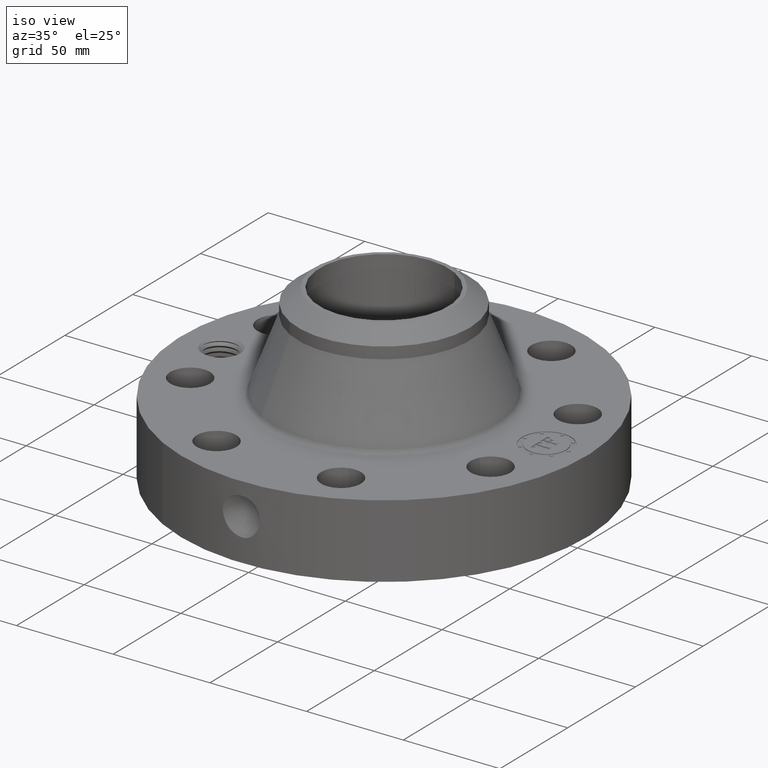
[diagram: clean part render]
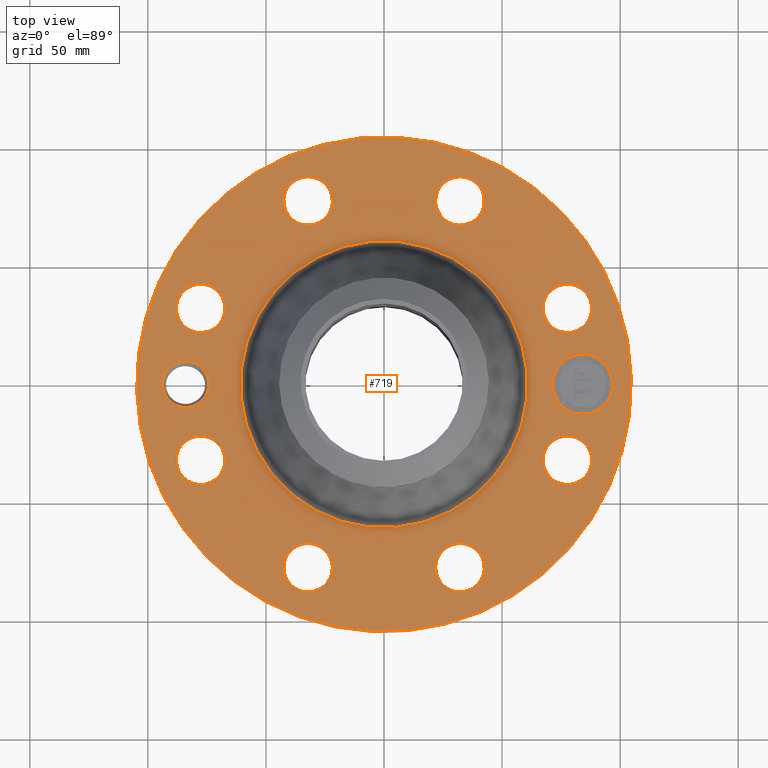
[diagram: tour spotlight — one face highlighted and labeled with its STEP entity id]
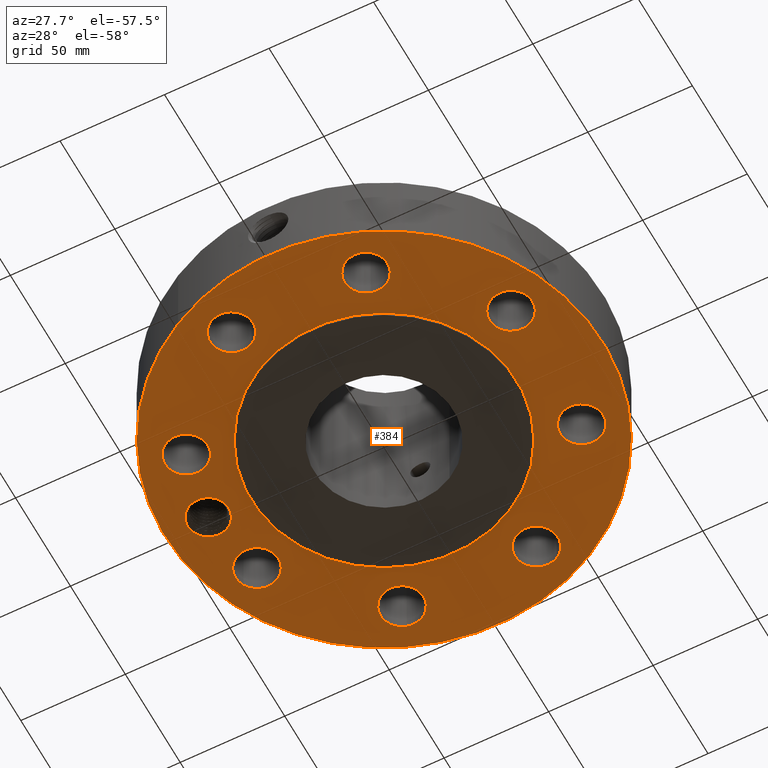
[diagram: tour spotlight — one face highlighted and labeled with its STEP entity id]
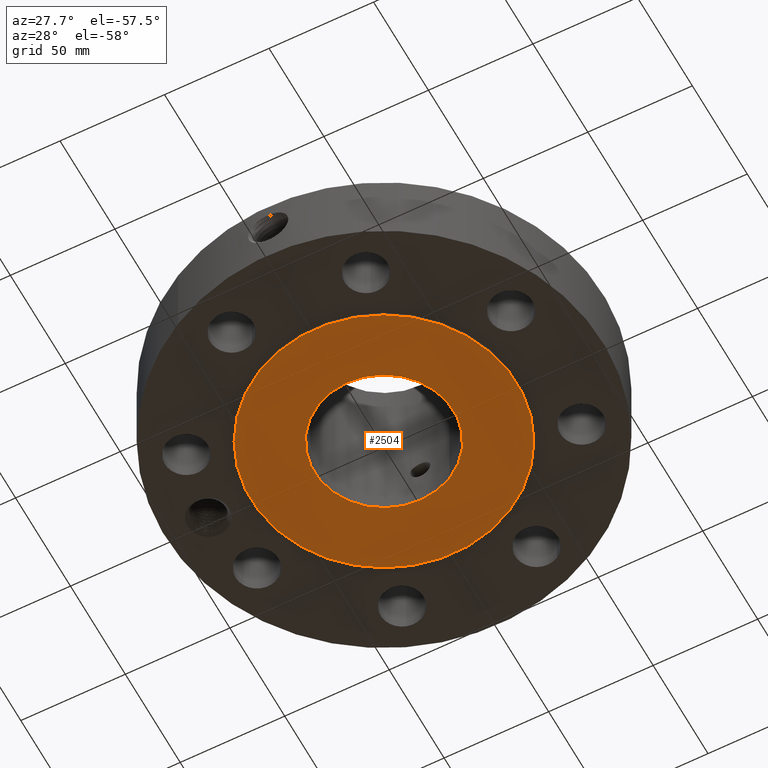
[diagram: tour spotlight — one face highlighted and labeled with its STEP entity id]
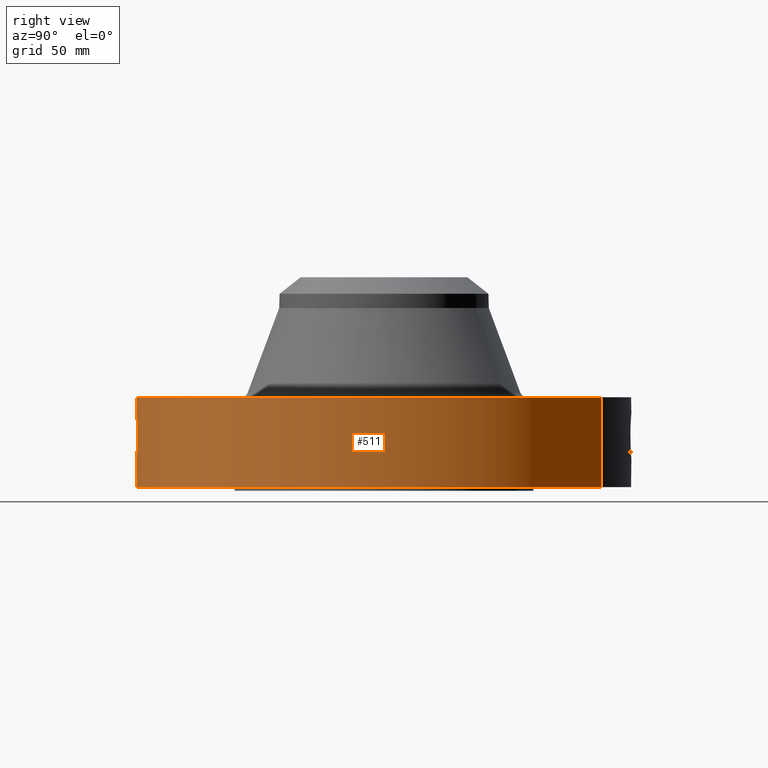
[diagram: tour spotlight — one face highlighted and labeled with its STEP entity id]
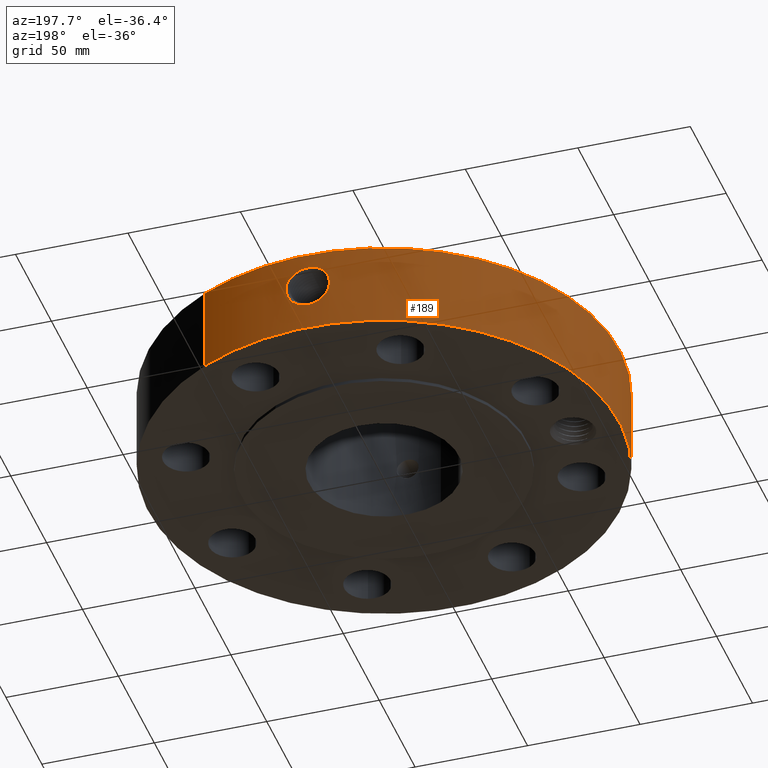
[diagram: tour spotlight — one face highlighted and labeled with its STEP entity id]
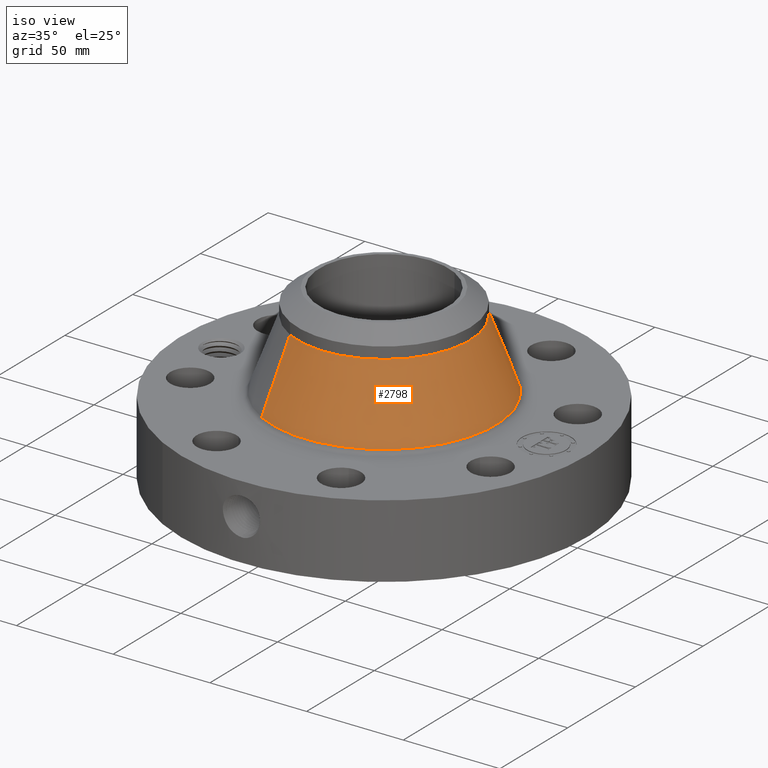
[diagram: tour spotlight — one face highlighted and labeled with its STEP entity id]
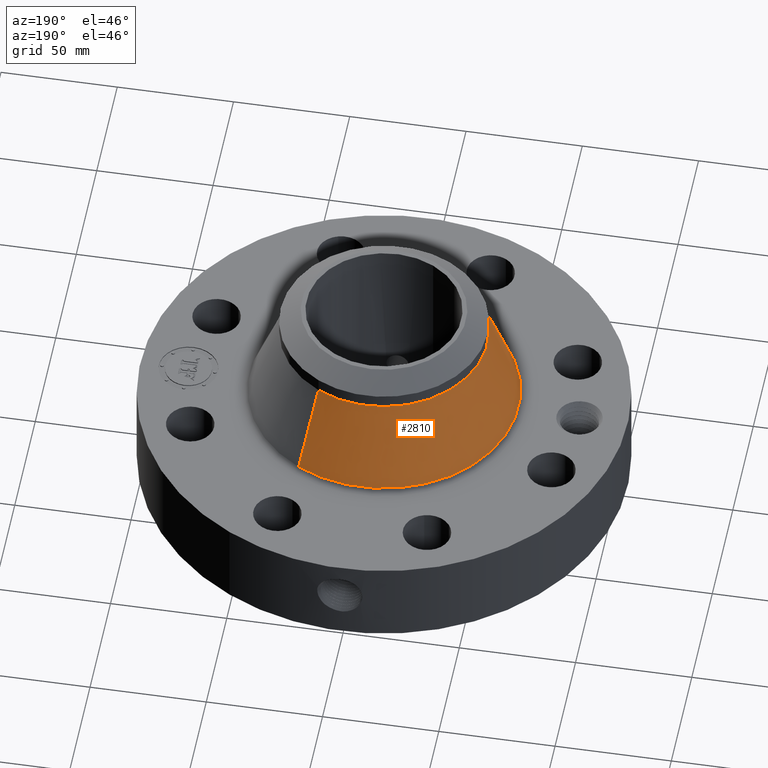
[diagram: tour spotlight — one face highlighted and labeled with its STEP entity id]
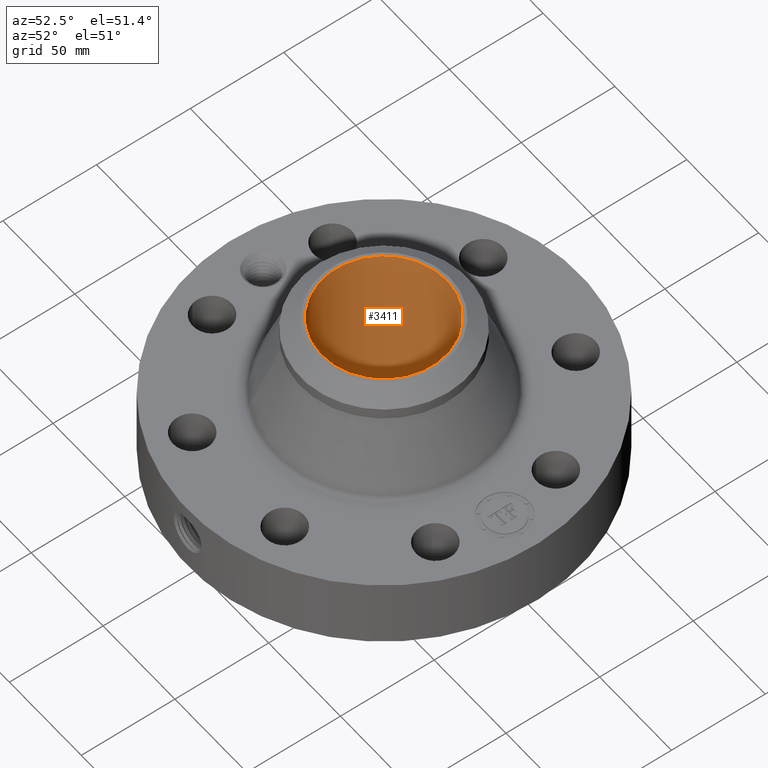
[diagram: tour spotlight — one face highlighted and labeled with its STEP entity id]
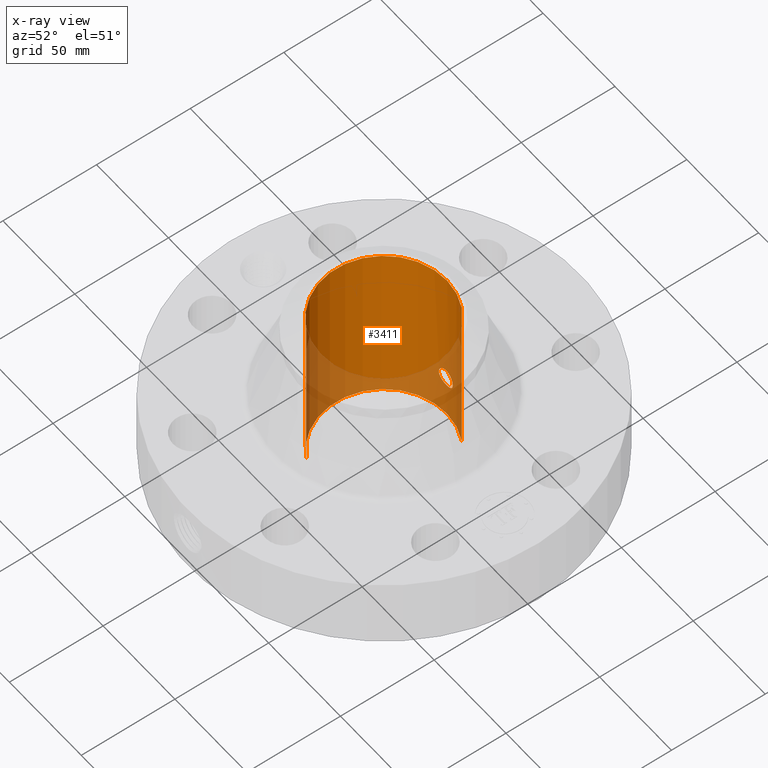
[diagram: x-ray of the same camera — body ghosted, this tour face saturated]
A machine part: a face-by-face anatomy tour. The part has 769 B-rep faces; the first image is the clean iso view, then the 8 largest visible faces are spotlighted one at a time (largest first), each with its STEP entity span.

Face 1 — top view, entity #719. In plain terms, the highlighted planar face has unit normal (0, 0, -1).
Definition (entity closure, byte-faithful):
#58=AXIS2_PLACEMENT_3D('Circle Axis2P3D',#56,#57,$) ;
#387=AXIS2_PLACEMENT_3D('Circle Axis2P3D',#385,#386,$) ;
#515=AXIS2_PLACEMENT_3D('Plane Axis2P3D',#512,#513,#514) ;
#523=AXIS2_PLACEMENT_3D('Circle Axis2P3D',#521,#522,$) ;
#532=AXIS2_PLACEMENT_3D('Circle Axis2P3D',#530,#531,$) ;
#541=AXIS2_PLACEMENT_3D('Circle Axis2P3D',#539,#540,$) ;
#550=AXIS2_PLACEMENT_3D('Circle Axis2P3D',#548,#549,$) ;
#559=AXIS2_PLACEMENT_3D('Circle Axis2P3D',#557,#558,$) ;
#568=AXIS2_PLACEMENT_3D('Circle Axis2P3D',#566,#567,$) ;
#577=AXIS2_PLACEMENT_3D('Circle Axis2P3D',#575,#576,$) ;
#586=AXIS2_PLACEMENT_3D('Circle Axis2P3D',#584,#585,$) ;
#595=AXIS2_PLACEMENT_3D('Circle Axis2P3D',#593,#594,$) ;
#604=AXIS2_PLACEMENT_3D('Circle Axis2P3D',#602,#603,$) ;
#613=AXIS2_PLACEMENT_3D('Circle Axis2P3D',#611,#612,$) ;
#622=AXIS2_PLACEMENT_3D('Circle Axis2P3D',#620,#621,$) ;
#631=AXIS2_PLACEMENT_3D('Circle Axis2P3D',#629,#630,$) ;
#640=AXIS2_PLACEMENT_3D('Circle Axis2P3D',#638,#639,$) ;
#649=AXIS2_PLACEMENT_3D('Circle Axis2P3D',#647,#648,$) ;
#658=AXIS2_PLACEMENT_3D('Circle Axis2P3D',#656,#657,$) ;
#667=AXIS2_PLACEMENT_3D('Circle Axis2P3D',#665,#666,$) ;
#676=AXIS2_PLACEMENT_3D('Circle Axis2P3D',#674,#675,$) ;
#685=AXIS2_PLACEMENT_3D('Circle Axis2P3D',#683,#684,$) ;
#694=AXIS2_PLACEMENT_3D('Circle Axis2P3D',#692,#693,$) ;
#703=AXIS2_PLACEMENT_3D('Circle Axis2P3D',#701,#702,$) ;
#712=AXIS2_PLACEMENT_3D('Circle Axis2P3D',#710,#711,$) ;
#53=CARTESIAN_POINT('Vertex',(-1.97763034675,-3.62002806781,1.56000000001)) ;
#56=CARTESIAN_POINT('Axis2P3D Location',(0.,0.,1.56000000001)) ;
#60=CARTESIAN_POINT('Vertex',(1.97763034675,3.62002806781,1.56000000001)) ;
#385=CARTESIAN_POINT('Axis2P3D Location',(0.,0.,1.56000000001)) ;
#512=CARTESIAN_POINT('Axis2P3D Location',(0.,4.12500000002,1.56000000001)) ;
#521=CARTESIAN_POINT('Axis2P3D Location',(-3.31000000001,5.59482469102E-016,1.56000000001)) ;
#525=CARTESIAN_POINT('Vertex',(-3.65061173185,0.186077037172,1.56000000001)) ;
#527=CARTESIAN_POINT('Vertex',(-2.96938826818,-0.186077037172,1.56000000001)) ;
#530=CARTESIAN_POINT('Axis2P3D Location',(-3.31000000001,5.59482469102E-016,1.56000000001)) ;
#539=CARTESIAN_POINT('Axis2P3D Location',(3.05804125262,-1.26668216113,1.56000000001)) ;
#543=CARTESIAN_POINT('Vertex',(2.70262031506,-1.072514818,1.56000000001)) ;
#545=CARTESIAN_POINT('Vertex',(3.41346219019,-1.46084950427,1.56000000001)) ;
#548=CARTESIAN_POINT('Axis2P3D Location',(3.05804125262,-1.26668216113,1.56000000001)) ;
#557=CARTESIAN_POINT('Axis2P3D Location',(0.,0.,1.56000000001)) ;
#561=CARTESIAN_POINT('Vertex',(-1.14729295051,-2.10010565911,1.56000000001)) ;
#563=CARTESIAN_POINT('Vertex',(1.14729295051,2.10010565911,1.56000000001)) ;
#566=CARTESIAN_POINT('Axis2P3D Location',(0.,0.,1.56000000001)) ;
#575=CARTESIAN_POINT('Axis2P3D Location',(1.26668216113,-3.05804125262,1.56000000001)) ;
#579=CARTESIAN_POINT('Vertex',(1.38070567125,-3.44665885277,1.56000000001)) ;
#581=CARTESIAN_POINT('Vertex',(1.15265865102,-2.66942365248,1.56000000001)) ;
#584=CARTESIAN_POINT('Axis2P3D Location',(1.26668216113,-3.05804125262,1.56000000001)) ;
#593=CARTESIAN_POINT('Axis2P3D Location',(-1.26668216113,-3.05804125262,1.56000000001)) ;
#597=CARTESIAN_POINT('Vertex',(-1.46084950427,-3.41346219019,1.56000000001)) ;
#599=CARTESIAN_POINT('Vertex',(-1.072514818,-2.70262031506,1.56000000001)) ;
#602=CARTESIAN_POINT('Axis2P3D Location',(-1.26668216113,-3.05804125262,1.56000000001)) ;
#611=CARTESIAN_POINT('Axis2P3D Location',(-3.05804125262,-1.26668216113,1.56000000001)) ;
#615=CARTESIAN_POINT('Vertex',(-3.44665885277,-1.38070567125,1.56000000001)) ;
#617=CARTESIAN_POINT('Vertex',(-2.66942365248,-1.15265865102,1.56000000001)) ;
#620=CARTESIAN_POINT('Axis2P3D Location',(-3.05804125262,-1.26668216113,1.56000000001)) ;
#629=CARTESIAN_POINT('Axis2P3D Location',(-3.05804125262,1.26668216113,1.56000000001)) ;
#633=CARTESIAN_POINT('Vertex',(-3.41346219019,1.46084950427,1.56000000001)) ;
#635=CARTESIAN_POINT('Vertex',(-2.70262031506,1.072514818,1.56000000001)) ;
#638=CARTESIAN_POINT('Axis2P3D Location',(-3.05804125262,1.26668216113,1.56000000001)) ;
#647=CARTESIAN_POINT('Axis2P3D Location',(-1.26668216113,3.05804125262,1.56000000001)) ;
#651=CARTESIAN_POINT('Vertex',(-1.38070567125,3.44665885277,1.56000000001)) ;
#653=CARTESIAN_POINT('Vertex',(-1.15265865102,2.66942365248,1.56000000001)) ;
#656=CARTESIAN_POINT('Axis2P3D Location',(-1.26668216113,3.05804125262,1.56000000001)) ;
#665=CARTESIAN_POINT('Axis2P3D Location',(1.26668216113,3.05804125262,1.56000000001)) ;
#669=CARTESIAN_POINT('Vertex',(1.46084950427,3.41346219019,1.56000000001)) ;
#671=CARTESIAN_POINT('Vertex',(1.072514818,2.70262031506,1.56000000001)) ;
#674=CARTESIAN_POINT('Axis2P3D Location',(1.26668216113,3.05804125262,1.56000000001)) ;
#683=CARTESIAN_POINT('Axis2P3D Location',(3.05804125262,1.26668216113,1.56000000001)) ;
#687=CARTESIAN_POINT('Vertex',(3.44665885277,1.38070567125,1.56000000001)) ;
#689=CARTESIAN_POINT('Vertex',(2.66942365248,1.15265865102,1.56000000001)) ;
#692=CARTESIAN_POINT('Axis2P3D Location',(3.05804125262,1.26668216113,1.56000000001)) ;
#701=CARTESIAN_POINT('Axis2P3D Location',(3.31000000001,-7.27327209833E-015,1.56000000001)) ;
#705=CARTESIAN_POINT('Vertex',(3.31000000001,0.499999995002,1.56000000001)) ;
#707=CARTESIAN_POINT('Vertex',(3.31000000001,-0.499999995002,1.56000000001)) ;
#710=CARTESIAN_POINT('Axis2P3D Location',(3.31000000001,-7.27327209833E-015,1.56000000001)) ;
#57=DIRECTION('Axis2P3D Direction',(0.,0.,-0.0393700787402)) ;
#386=DIRECTION('Axis2P3D Direction',(0.,0.,-0.0393700787402)) ;
#513=DIRECTION('Axis2P3D Direction',(0.,0.,-0.0393700787402)) ;
#514=DIRECTION('Axis2P3D XDirection',(0.0393700787402,0.,0.)) ;
#522=DIRECTION('Axis2P3D Direction',(0.,0.,-0.0393700787402)) ;
#531=DIRECTION('Axis2P3D Direction',(0.,0.,-0.0393700787402)) ;
#540=DIRECTION('Axis2P3D Direction',(0.,0.,-0.0393700787402)) ;
#549=DIRECTION('Axis2P3D Direction',(0.,0.,-0.0393700787402)) ;
#558=DIRECTION('Axis2P3D Direction',(0.,0.,-0.0393700787402)) ;
#567=DIRECTION('Axis2P3D Direction',(0.,0.,-0.0393700787402)) ;
#576=DIRECTION('Axis2P3D Direction',(0.,0.,-0.0393700787402)) ;
#585=DIRECTION('Axis2P3D Direction',(0.,0.,-0.0393700787402)) ;
#594=DIRECTION('Axis2P3D Direction',(0.,0.,-0.0393700787402)) ;
#603=DIRECTION('Axis2P3D Direction',(0.,0.,-0.0393700787402)) ;
#612=DIRECTION('Axis2P3D Direction',(0.,0.,-0.0393700787402)) ;
#621=DIRECTION('Axis2P3D Direction',(0.,0.,-0.0393700787402)) ;
#630=DIRECTION('Axis2P3D Direction',(0.,0.,-0.0393700787402)) ;
#639=DIRECTION('Axis2P3D Direction',(0.,0.,-0.0393700787402)) ;
#648=DIRECTION('Axis2P3D Direction',(0.,0.,-0.0393700787402)) ;
#657=DIRECTION('Axis2P3D Direction',(0.,0.,-0.0393700787402)) ;
#666=DIRECTION('Axis2P3D Direction',(0.,0.,-0.0393700787402)) ;
#675=DIRECTION('Axis2P3D Direction',(0.,0.,-0.0393700787402)) ;
#684=DIRECTION('Axis2P3D Direction',(0.,0.,-0.0393700787402)) ;
#693=DIRECTION('Axis2P3D Direction',(0.,0.,-0.0393700787402)) ;
#702=DIRECTION('Axis2P3D Direction',(0.,0.,-0.0393700787402)) ;
#711=DIRECTION('Axis2P3D Direction',(0.,0.,-0.0393700787402)) ;
#518=ORIENTED_EDGE('',*,*,#389,.F.) ;
#519=ORIENTED_EDGE('',*,*,#62,.F.) ;
#536=ORIENTED_EDGE('',*,*,#529,.T.) ;
#537=ORIENTED_EDGE('',*,*,#534,.T.) ;
#554=ORIENTED_EDGE('',*,*,#547,.T.) ;
#555=ORIENTED_EDGE('',*,*,#552,.T.) ;
#572=ORIENTED_EDGE('',*,*,#565,.T.) ;
#573=ORIENTED_EDGE('',*,*,#570,.T.) ;
#590=ORIENTED_EDGE('',*,*,#583,.T.) ;
#591=ORIENTED_EDGE('',*,*,#588,.T.) ;
#608=ORIENTED_EDGE('',*,*,#601,.T.) ;
#609=ORIENTED_EDGE('',*,*,#606,.T.) ;
#626=ORIENTED_EDGE('',*,*,#619,.T.) ;
#627=ORIENTED_EDGE('',*,*,#624,.T.) ;
#644=ORIENTED_EDGE('',*,*,#637,.T.) ;
#645=ORIENTED_EDGE('',*,*,#642,.T.) ;
#662=ORIENTED_EDGE('',*,*,#655,.T.) ;
#663=ORIENTED_EDGE('',*,*,#660,.T.) ;
#680=ORIENTED_EDGE('',*,*,#673,.T.) ;
#681=ORIENTED_EDGE('',*,*,#678,.T.) ;
#698=ORIENTED_EDGE('',*,*,#691,.T.) ;
#699=ORIENTED_EDGE('',*,*,#696,.T.) ;
#716=ORIENTED_EDGE('',*,*,#709,.T.) ;
#717=ORIENTED_EDGE('',*,*,#714,.T.) ;
#538=FACE_BOUND('',#535,.T.) ;
#556=FACE_BOUND('',#553,.T.) ;
#574=FACE_BOUND('',#571,.T.) ;
#592=FACE_BOUND('',#589,.T.) ;
#610=FACE_BOUND('',#607,.T.) ;
#628=FACE_BOUND('',#625,.T.) ;
#646=FACE_BOUND('',#643,.T.) ;
#664=FACE_BOUND('',#661,.T.) ;
#682=FACE_BOUND('',#679,.T.) ;
#700=FACE_BOUND('',#697,.T.) ;
#718=FACE_BOUND('',#715,.T.) ;
#719=ADVANCED_FACE('PartBody',(#520,#538,#556,#574,#592,#610,#628,#646,#664,#682,#700,#718),#516,.F.) ;
#59=CIRCLE('generated circle',#58,4.12500000002) ;
#388=CIRCLE('generated circle',#387,4.12500000002) ;
#524=CIRCLE('generated circle',#523,0.388125000002) ;
#533=CIRCLE('generated circle',#532,0.388125000002) ;
#542=CIRCLE('generated circle',#541,0.405000000002) ;
#551=CIRCLE('generated circle',#550,0.405000000002) ;
#560=CIRCLE('generated circle',#559,2.39305764529) ;
#569=CIRCLE('generated circle',#568,2.39305764529) ;
#578=CIRCLE('generated circle',#577,0.405000000002) ;
#587=CIRCLE('generated circle',#586,0.405000000002) ;
#596=CIRCLE('generated circle',#595,0.405000000002) ;
#605=CIRCLE('generated circle',#604,0.405000000002) ;
#614=CIRCLE('generated circle',#613,0.405000000002) ;
#623=CIRCLE('generated circle',#622,0.405000000002) ;
#632=CIRCLE('generated circle',#631,0.405000000002) ;
#641=CIRCLE('generated circle',#640,0.405000000002) ;
#650=CIRCLE('generated circle',#649,0.405000000002) ;
#659=CIRCLE('generated circle',#658,0.405000000002) ;
#668=CIRCLE('generated circle',#667,0.405000000002) ;
#677=CIRCLE('generated circle',#676,0.405000000002) ;
#686=CIRCLE('generated circle',#685,0.405000000002) ;
#695=CIRCLE('generated circle',#694,0.405000000002) ;
#704=CIRCLE('generated circle',#703,0.499999995002) ;
#713=CIRCLE('generated circle',#712,0.499999995002) ;
#62=EDGE_CURVE('',#54,#61,#59,.T.) ;
#389=EDGE_CURVE('',#61,#54,#388,.T.) ;
#529=EDGE_CURVE('',#526,#528,#524,.T.) ;
#534=EDGE_CURVE('',#528,#526,#533,.T.) ;
#547=EDGE_CURVE('',#544,#546,#542,.T.) ;
#552=EDGE_CURVE('',#546,#544,#551,.T.) ;
#565=EDGE_CURVE('',#562,#564,#560,.T.) ;
#570=EDGE_CURVE('',#564,#562,#569,.T.) ;
#583=EDGE_CURVE('',#580,#582,#578,.T.) ;
#588=EDGE_CURVE('',#582,#580,#587,.T.) ;
#601=EDGE_CURVE('',#598,#600,#596,.T.) ;
#606=EDGE_CURVE('',#600,#598,#605,.T.) ;
#619=EDGE_CURVE('',#616,#618,#614,.T.) ;
#624=EDGE_CURVE('',#618,#616,#623,.T.) ;
#637=EDGE_CURVE('',#634,#636,#632,.T.) ;
#642=EDGE_CURVE('',#636,#634,#641,.T.) ;
#655=EDGE_CURVE('',#652,#654,#650,.T.) ;
#660=EDGE_CURVE('',#654,#652,#659,.T.) ;
#673=EDGE_CURVE('',#670,#672,#668,.T.) ;
#678=EDGE_CURVE('',#672,#670,#677,.T.) ;
#691=EDGE_CURVE('',#688,#690,#686,.T.) ;
#696=EDGE_CURVE('',#690,#688,#695,.T.) ;
#709=EDGE_CURVE('',#706,#708,#704,.T.) ;
#714=EDGE_CURVE('',#708,#706,#713,.T.) ;
#517=EDGE_LOOP('',(#518,#519)) ;
#535=EDGE_LOOP('',(#536,#537)) ;
#553=EDGE_LOOP('',(#554,#555)) ;
#571=EDGE_LOOP('',(#572,#573)) ;
#589=EDGE_LOOP('',(#590,#591)) ;
#607=EDGE_LOOP('',(#608,#609)) ;
#625=EDGE_LOOP('',(#626,#627)) ;
#643=EDGE_LOOP('',(#644,#645)) ;
#661=EDGE_LOOP('',(#662,#663)) ;
#679=EDGE_LOOP('',(#680,#681)) ;
#697=EDGE_LOOP('',(#698,#699)) ;
#715=EDGE_LOOP('',(#716,#717)) ;
#520=FACE_OUTER_BOUND('',#517,.T.) ;
#516=PLANE('',#515) ;
#54=VERTEX_POINT('',#53) ;
#61=VERTEX_POINT('',#60) ;
#526=VERTEX_POINT('',#525) ;
#528=VERTEX_POINT('',#527) ;
#544=VERTEX_POINT('',#543) ;
#546=VERTEX_POINT('',#545) ;
#562=VERTEX_POINT('',#561) ;
#564=VERTEX_POINT('',#563) ;
#580=VERTEX_POINT('',#579) ;
#582=VERTEX_POINT('',#581) ;
#598=VERTEX_POINT('',#597) ;
#600=VERTEX_POINT('',#599) ;
#616=VERTEX_POINT('',#615) ;
#618=VERTEX_POINT('',#617) ;
#634=VERTEX_POINT('',#633) ;
#636=VERTEX_POINT('',#635) ;
#652=VERTEX_POINT('',#651) ;
#654=VERTEX_POINT('',#653) ;
#670=VERTEX_POINT('',#669) ;
#672=VERTEX_POINT('',#671) ;
#688=VERTEX_POINT('',#687) ;
#690=VERTEX_POINT('',#689) ;
#706=VERTEX_POINT('',#705) ;
#708=VERTEX_POINT('',#707) ;

Face 2 — auxiliary view, entity #384. In plain terms, the highlighted planar face has unit normal (0, 0, -1).
Definition (entity closure, byte-faithful):
#42=AXIS2_PLACEMENT_3D('Circle Axis2P3D',#40,#41,$) ;
#193=AXIS2_PLACEMENT_3D('Plane Axis2P3D',#190,#191,#192) ;
#197=AXIS2_PLACEMENT_3D('Circle Axis2P3D',#195,#196,$) ;
#206=AXIS2_PLACEMENT_3D('Circle Axis2P3D',#204,#205,$) ;
#215=AXIS2_PLACEMENT_3D('Circle Axis2P3D',#213,#214,$) ;
#224=AXIS2_PLACEMENT_3D('Circle Axis2P3D',#222,#223,$) ;
#233=AXIS2_PLACEMENT_3D('Circle Axis2P3D',#231,#232,$) ;
#242=AXIS2_PLACEMENT_3D('Circle Axis2P3D',#240,#241,$) ;
#251=AXIS2_PLACEMENT_3D('Circle Axis2P3D',#249,#250,$) ;
#260=AXIS2_PLACEMENT_3D('Circle Axis2P3D',#258,#259,$) ;
#269=AXIS2_PLACEMENT_3D('Circle Axis2P3D',#267,#268,$) ;
#278=AXIS2_PLACEMENT_3D('Circle Axis2P3D',#276,#277,$) ;
#287=AXIS2_PLACEMENT_3D('Circle Axis2P3D',#285,#286,$) ;
#296=AXIS2_PLACEMENT_3D('Circle Axis2P3D',#294,#295,$) ;
#305=AXIS2_PLACEMENT_3D('Circle Axis2P3D',#303,#304,$) ;
#314=AXIS2_PLACEMENT_3D('Circle Axis2P3D',#312,#313,$) ;
#323=AXIS2_PLACEMENT_3D('Circle Axis2P3D',#321,#322,$) ;
#332=AXIS2_PLACEMENT_3D('Circle Axis2P3D',#330,#331,$) ;
#341=AXIS2_PLACEMENT_3D('Circle Axis2P3D',#339,#340,$) ;
#350=AXIS2_PLACEMENT_3D('Circle Axis2P3D',#348,#349,$) ;
#359=AXIS2_PLACEMENT_3D('Circle Axis2P3D',#357,#358,$) ;
#368=AXIS2_PLACEMENT_3D('Circle Axis2P3D',#366,#367,$) ;
#377=AXIS2_PLACEMENT_3D('Circle Axis2P3D',#375,#376,$) ;
#40=CARTESIAN_POINT('Axis2P3D Location',(0.,0.,0.0600000000002)) ;
#44=CARTESIAN_POINT('Vertex',(-1.97763034675,-3.62002806781,0.0600000000002)) ;
#46=CARTESIAN_POINT('Vertex',(1.97763034675,3.62002806781,0.0600000000002)) ;
#190=CARTESIAN_POINT('Axis2P3D Location',(0.,2.50000000001,0.0600000000002)) ;
#195=CARTESIAN_POINT('Axis2P3D Location',(0.,0.,0.0600000000002)) ;
#204=CARTESIAN_POINT('Axis2P3D Location',(-3.31000000001,2.79741234551E-016,0.0600000000002)) ;
#208=CARTESIAN_POINT('Vertex',(-2.96938826818,-0.186077037172,0.0600000000002)) ;
#210=CARTESIAN_POINT('Vertex',(-3.65061173185,0.186077037172,0.0600000000002)) ;
#213=CARTESIAN_POINT('Axis2P3D Location',(-3.31000000001,2.79741234551E-016,0.0600000000002)) ;
#222=CARTESIAN_POINT('Axis2P3D Location',(3.05804125262,-1.26668216113,0.0600000000002)) ;
#226=CARTESIAN_POINT('Vertex',(3.41346219019,-1.46084950427,0.0600000000002)) ;
#228=CARTESIAN_POINT('Vertex',(2.70262031506,-1.072514818,0.0600000000002)) ;
#231=CARTESIAN_POINT('Axis2P3D Location',(3.05804125262,-1.26668216113,0.0600000000002)) ;
#240=CARTESIAN_POINT('Axis2P3D Location',(0.,0.,0.0600000000002)) ;
#244=CARTESIAN_POINT('Vertex',(1.19856384652,2.19395640473,0.0600000000002)) ;
#246=CARTESIAN_POINT('Vertex',(-1.19856384652,-2.19395640473,0.0600000000002)) ;
#249=CARTESIAN_POINT('Axis2P3D Location',(0.,0.,0.0600000000002)) ;
#258=CARTESIAN_POINT('Axis2P3D Location',(1.26668216113,-3.05804125262,0.0600000000002)) ;
#262=CARTESIAN_POINT('Vertex',(1.15265865102,-2.66942365248,0.0600000000002)) ;
#264=CARTESIAN_POINT('Vertex',(1.38070567125,-3.44665885277,0.0600000000002)) ;
#267=CARTESIAN_POINT('Axis2P3D Location',(1.26668216113,-3.05804125262,0.0600000000002)) ;
#276=CARTESIAN_POINT('Axis2P3D Location',(-1.26668216113,-3.05804125262,0.0600000000002)) ;
#280=CARTESIAN_POINT('Vertex',(-1.072514818,-2.70262031506,0.0600000000002)) ;
#282=CARTESIAN_POINT('Vertex',(-1.46084950427,-3.41346219019,0.0600000000002)) ;
#285=CARTESIAN_POINT('Axis2P3D Location',(-1.26668216113,-3.05804125262,0.0600000000002)) ;
#294=CARTESIAN_POINT('Axis2P3D Location',(-3.05804125262,-1.26668216113,0.0600000000002)) ;
#298=CARTESIAN_POINT('Vertex',(-2.66942365248,-1.15265865102,0.0600000000002)) ;
#300=CARTESIAN_POINT('Vertex',(-3.44665885277,-1.38070567125,0.0600000000002)) ;
#303=CARTESIAN_POINT('Axis2P3D Location',(-3.05804125262,-1.26668216113,0.0600000000002)) ;
#312=CARTESIAN_POINT('Axis2P3D Location',(-3.05804125262,1.26668216113,0.0600000000002)) ;
#316=CARTESIAN_POINT('Vertex',(-2.70262031506,1.072514818,0.0600000000002)) ;
#318=CARTESIAN_POINT('Vertex',(-3.41346219019,1.46084950427,0.0600000000002)) ;
#321=CARTESIAN_POINT('Axis2P3D Location',(-3.05804125262,1.26668216113,0.0600000000002)) ;
#330=CARTESIAN_POINT('Axis2P3D Location',(-1.26668216113,3.05804125262,0.0600000000002)) ;
#334=CARTESIAN_POINT('Vertex',(-1.15265865102,2.66942365248,0.0600000000002)) ;
#336=CARTESIAN_POINT('Vertex',(-1.38070567125,3.44665885277,0.0600000000002)) ;
#339=CARTESIAN_POINT('Axis2P3D Location',(-1.26668216113,3.05804125262,0.0600000000002)) ;
#348=CARTESIAN_POINT('Axis2P3D Location',(1.26668216113,3.05804125262,0.0600000000002)) ;
#352=CARTESIAN_POINT('Vertex',(1.072514818,2.70262031506,0.0600000000002)) ;
#354=CARTESIAN_POINT('Vertex',(1.46084950427,3.41346219019,0.0600000000002)) ;
#357=CARTESIAN_POINT('Axis2P3D Location',(1.26668216113,3.05804125262,0.0600000000002)) ;
#366=CARTESIAN_POINT('Axis2P3D Location',(3.05804125262,1.26668216113,0.0600000000002)) ;
#370=CARTESIAN_POINT('Vertex',(2.66942365248,1.15265865102,0.0600000000002)) ;
#372=CARTESIAN_POINT('Vertex',(3.44665885277,1.38070567125,0.0600000000002)) ;
#375=CARTESIAN_POINT('Axis2P3D Location',(3.05804125262,1.26668216113,0.0600000000002)) ;
#41=DIRECTION('Axis2P3D Direction',(0.,0.,-0.0393700787402)) ;
#191=DIRECTION('Axis2P3D Direction',(0.,0.,-0.0393700787402)) ;
#192=DIRECTION('Axis2P3D XDirection',(0.0393700787402,0.,0.)) ;
#196=DIRECTION('Axis2P3D Direction',(0.,0.,-0.0393700787402)) ;
#205=DIRECTION('Axis2P3D Direction',(0.,0.,-0.0393700787402)) ;
#214=DIRECTION('Axis2P3D Direction',(0.,0.,-0.0393700787402)) ;
#223=DIRECTION('Axis2P3D Direction',(0.,0.,-0.0393700787402)) ;
#232=DIRECTION('Axis2P3D Direction',(0.,0.,-0.0393700787402)) ;
#241=DIRECTION('Axis2P3D Direction',(0.,0.,-0.0393700787402)) ;
#250=DIRECTION('Axis2P3D Direction',(0.,0.,-0.0393700787402)) ;
#259=DIRECTION('Axis2P3D Direction',(0.,0.,-0.0393700787402)) ;
#268=DIRECTION('Axis2P3D Direction',(0.,0.,-0.0393700787402)) ;
#277=DIRECTION('Axis2P3D Direction',(0.,0.,-0.0393700787402)) ;
#286=DIRECTION('Axis2P3D Direction',(0.,0.,-0.0393700787402)) ;
#295=DIRECTION('Axis2P3D Direction',(0.,0.,-0.0393700787402)) ;
#304=DIRECTION('Axis2P3D Direction',(0.,0.,-0.0393700787402)) ;
#313=DIRECTION('Axis2P3D Direction',(0.,0.,-0.0393700787402)) ;
#322=DIRECTION('Axis2P3D Direction',(0.,0.,-0.0393700787402)) ;
#331=DIRECTION('Axis2P3D Direction',(0.,0.,-0.0393700787402)) ;
#340=DIRECTION('Axis2P3D Direction',(0.,0.,-0.0393700787402)) ;
#349=DIRECTION('Axis2P3D Direction',(0.,0.,-0.0393700787402)) ;
#358=DIRECTION('Axis2P3D Direction',(0.,0.,-0.0393700787402)) ;
#367=DIRECTION('Axis2P3D Direction',(0.,0.,-0.0393700787402)) ;
#376=DIRECTION('Axis2P3D Direction',(0.,0.,-0.0393700787402)) ;
#201=ORIENTED_EDGE('',*,*,#48,.T.) ;
#202=ORIENTED_EDGE('',*,*,#199,.T.) ;
#219=ORIENTED_EDGE('',*,*,#212,.F.) ;
#220=ORIENTED_EDGE('',*,*,#217,.F.) ;
#237=ORIENTED_EDGE('',*,*,#230,.F.) ;
#238=ORIENTED_EDGE('',*,*,#235,.F.) ;
#255=ORIENTED_EDGE('',*,*,#248,.F.) ;
#256=ORIENTED_EDGE('',*,*,#253,.F.) ;
#273=ORIENTED_EDGE('',*,*,#266,.F.) ;
#274=ORIENTED_EDGE('',*,*,#271,.F.) ;
#291=ORIENTED_EDGE('',*,*,#284,.F.) ;
#292=ORIENTED_EDGE('',*,*,#289,.F.) ;
#309=ORIENTED_EDGE('',*,*,#302,.F.) ;
#310=ORIENTED_EDGE('',*,*,#307,.F.) ;
#327=ORIENTED_EDGE('',*,*,#320,.F.) ;
#328=ORIENTED_EDGE('',*,*,#325,.F.) ;
#345=ORIENTED_EDGE('',*,*,#338,.F.) ;
#346=ORIENTED_EDGE('',*,*,#343,.F.) ;
#363=ORIENTED_EDGE('',*,*,#356,.F.) ;
#364=ORIENTED_EDGE('',*,*,#361,.F.) ;
#381=ORIENTED_EDGE('',*,*,#374,.F.) ;
#382=ORIENTED_EDGE('',*,*,#379,.F.) ;
#221=FACE_BOUND('',#218,.T.) ;
#239=FACE_BOUND('',#236,.T.) ;
#257=FACE_BOUND('',#254,.T.) ;
#275=FACE_BOUND('',#272,.T.) ;
#293=FACE_BOUND('',#290,.T.) ;
#311=FACE_BOUND('',#308,.T.) ;
#329=FACE_BOUND('',#326,.T.) ;
#347=FACE_BOUND('',#344,.T.) ;
#365=FACE_BOUND('',#362,.T.) ;
#383=FACE_BOUND('',#380,.T.) ;
#384=ADVANCED_FACE('PartBody',(#203,#221,#239,#257,#275,#293,#311,#329,#347,#365,#383),#194,.T.) ;
#43=CIRCLE('generated circle',#42,4.12500000002) ;
#198=CIRCLE('generated circle',#197,4.12500000002) ;
#207=CIRCLE('generated circle',#206,0.388125000002) ;
#216=CIRCLE('generated circle',#215,0.388125000002) ;
#225=CIRCLE('generated circle',#224,0.405000000002) ;
#234=CIRCLE('generated circle',#233,0.405000000002) ;
#243=CIRCLE('generated circle',#242,2.50000000001) ;
#252=CIRCLE('generated circle',#251,2.50000000001) ;
#261=CIRCLE('generated circle',#260,0.405000000002) ;
#270=CIRCLE('generated circle',#269,0.405000000002) ;
#279=CIRCLE('generated circle',#278,0.405000000002) ;
#288=CIRCLE('generated circle',#287,0.405000000002) ;
#297=CIRCLE('generated circle',#296,0.405000000002) ;
#306=CIRCLE('generated circle',#305,0.405000000002) ;
#315=CIRCLE('generated circle',#314,0.405000000002) ;
#324=CIRCLE('generated circle',#323,0.405000000002) ;
#333=CIRCLE('generated circle',#332,0.405000000002) ;
#342=CIRCLE('generated circle',#341,0.405000000002) ;
#351=CIRCLE('generated circle',#350,0.405000000002) ;
#360=CIRCLE('generated circle',#359,0.405000000002) ;
#369=CIRCLE('generated circle',#368,0.405000000002) ;
#378=CIRCLE('generated circle',#377,0.405000000002) ;
#48=EDGE_CURVE('',#45,#47,#43,.T.) ;
#199=EDGE_CURVE('',#47,#45,#198,.T.) ;
#212=EDGE_CURVE('',#209,#211,#207,.T.) ;
#217=EDGE_CURVE('',#211,#209,#216,.T.) ;
#230=EDGE_CURVE('',#227,#229,#225,.T.) ;
#235=EDGE_CURVE('',#229,#227,#234,.T.) ;
#248=EDGE_CURVE('',#245,#247,#243,.T.) ;
#253=EDGE_CURVE('',#247,#245,#252,.T.) ;
#266=EDGE_CURVE('',#263,#265,#261,.T.) ;
#271=EDGE_CURVE('',#265,#263,#270,.T.) ;
#284=EDGE_CURVE('',#281,#283,#279,.T.) ;
#289=EDGE_CURVE('',#283,#281,#288,.T.) ;
#302=EDGE_CURVE('',#299,#301,#297,.T.) ;
#307=EDGE_CURVE('',#301,#299,#306,.T.) ;
#320=EDGE_CURVE('',#317,#319,#315,.T.) ;
#325=EDGE_CURVE('',#319,#317,#324,.T.) ;
#338=EDGE_CURVE('',#335,#337,#333,.T.) ;
#343=EDGE_CURVE('',#337,#335,#342,.T.) ;
#356=EDGE_CURVE('',#353,#355,#351,.T.) ;
#361=EDGE_CURVE('',#355,#353,#360,.T.) ;
#374=EDGE_CURVE('',#371,#373,#369,.T.) ;
#379=EDGE_CURVE('',#373,#371,#378,.T.) ;
#200=EDGE_LOOP('',(#201,#202)) ;
#218=EDGE_LOOP('',(#219,#220)) ;
#236=EDGE_LOOP('',(#237,#238)) ;
#254=EDGE_LOOP('',(#255,#256)) ;
#272=EDGE_LOOP('',(#273,#274)) ;
#290=EDGE_LOOP('',(#291,#292)) ;
#308=EDGE_LOOP('',(#309,#310)) ;
#326=EDGE_LOOP('',(#327,#328)) ;
#344=EDGE_LOOP('',(#345,#346)) ;
#362=EDGE_LOOP('',(#363,#364)) ;
#380=EDGE_LOOP('',(#381,#382)) ;
#203=FACE_OUTER_BOUND('',#200,.T.) ;
#194=PLANE('',#193) ;
#45=VERTEX_POINT('',#44) ;
#47=VERTEX_POINT('',#46) ;
#209=VERTEX_POINT('',#208) ;
#211=VERTEX_POINT('',#210) ;
#227=VERTEX_POINT('',#226) ;
#229=VERTEX_POINT('',#228) ;
#245=VERTEX_POINT('',#244) ;
#247=VERTEX_POINT('',#246) ;
#263=VERTEX_POINT('',#262) ;
#265=VERTEX_POINT('',#264) ;
#281=VERTEX_POINT('',#280) ;
#283=VERTEX_POINT('',#282) ;
#299=VERTEX_POINT('',#298) ;
#301=VERTEX_POINT('',#300) ;
#317=VERTEX_POINT('',#316) ;
#319=VERTEX_POINT('',#318) ;
#335=VERTEX_POINT('',#334) ;
#337=VERTEX_POINT('',#336) ;
#353=VERTEX_POINT('',#352) ;
#355=VERTEX_POINT('',#354) ;
#371=VERTEX_POINT('',#370) ;
#373=VERTEX_POINT('',#372) ;

Face 3 — auxiliary view, entity #2504. In plain terms, the highlighted planar face has unit normal (0, 0, -1).
Definition (entity closure, byte-faithful):
#1331=AXIS2_PLACEMENT_3D('Circle Axis2P3D',#1329,#1330,$) ;
#1357=AXIS2_PLACEMENT_3D('Circle Axis2P3D',#1355,#1356,$) ;
#2480=AXIS2_PLACEMENT_3D('Plane Axis2P3D',#2477,#2478,#2479) ;
#2488=AXIS2_PLACEMENT_3D('Circle Axis2P3D',#2486,#2487,$) ;
#2497=AXIS2_PLACEMENT_3D('Circle Axis2P3D',#2495,#2496,$) ;
#1329=CARTESIAN_POINT('Axis2P3D Location',(0.,0.,2.79741234551E-016)) ;
#1333=CARTESIAN_POINT('Vertex',(1.19856384652,2.19395640473,2.79741234551E-016)) ;
#1335=CARTESIAN_POINT('Vertex',(-1.19856384652,-2.19395640473,2.79741234551E-016)) ;
#1355=CARTESIAN_POINT('Axis2P3D Location',(0.,0.,2.79741234551E-016)) ;
#2477=CARTESIAN_POINT('Axis2P3D Location',(0.,1.31200000001,0.)) ;
#2486=CARTESIAN_POINT('Axis2P3D Location',(0.,0.,0.)) ;
#2490=CARTESIAN_POINT('Vertex',(0.629006306651,1.1513883212,-1.95818864186E-015)) ;
#2492=CARTESIAN_POINT('Vertex',(-0.629006306651,-1.1513883212,-1.95818864186E-015)) ;
#2495=CARTESIAN_POINT('Axis2P3D Location',(0.,0.,0.)) ;
#1330=DIRECTION('Axis2P3D Direction',(0.,0.,-0.0393700787402)) ;
#1356=DIRECTION('Axis2P3D Direction',(0.,0.,-0.0393700787402)) ;
#2478=DIRECTION('Axis2P3D Direction',(0.,0.,-0.0393700787402)) ;
#2479=DIRECTION('Axis2P3D XDirection',(0.0393700787402,0.,0.)) ;
#2487=DIRECTION('Axis2P3D Direction',(0.,0.,-0.0393700787402)) ;
#2496=DIRECTION('Axis2P3D Direction',(0.,0.,-0.0393700787402)) ;
#2483=ORIENTED_EDGE('',*,*,#1359,.T.) ;
#2484=ORIENTED_EDGE('',*,*,#1337,.T.) ;
#2501=ORIENTED_EDGE('',*,*,#2494,.F.) ;
#2502=ORIENTED_EDGE('',*,*,#2499,.F.) ;
#2503=FACE_BOUND('',#2500,.T.) ;
#2504=ADVANCED_FACE('PartBody',(#2485,#2503),#2481,.T.) ;
#1332=CIRCLE('generated circle',#1331,2.50000000001) ;
#1358=CIRCLE('generated circle',#1357,2.50000000001) ;
#2489=CIRCLE('generated circle',#2488,1.31200000001) ;
#2498=CIRCLE('generated circle',#2497,1.31200000001) ;
#1337=EDGE_CURVE('',#1334,#1336,#1332,.T.) ;
#1359=EDGE_CURVE('',#1336,#1334,#1358,.T.) ;
#2494=EDGE_CURVE('',#2491,#2493,#2489,.T.) ;
#2499=EDGE_CURVE('',#2493,#2491,#2498,.T.) ;
#2482=EDGE_LOOP('',(#2483,#2484)) ;
#2500=EDGE_LOOP('',(#2501,#2502)) ;
#2485=FACE_OUTER_BOUND('',#2482,.T.) ;
#2481=PLANE('',#2480) ;
#1334=VERTEX_POINT('',#1333) ;
#1336=VERTEX_POINT('',#1335) ;
#2491=VERTEX_POINT('',#2490) ;
#2493=VERTEX_POINT('',#2492) ;

Face 4 — right view, entity #511. In plain terms, the highlighted cylindrical surface (partial cylindrical patch) has radius 104.775 mm, axis along (0, 0, -1).
Definition (entity closure, byte-faithful):
#38=AXIS2_PLACEMENT_3D('Cylinder Axis2P3D',#35,#36,#37) ;
#197=AXIS2_PLACEMENT_3D('Circle Axis2P3D',#195,#196,$) ;
#387=AXIS2_PLACEMENT_3D('Circle Axis2P3D',#385,#386,$) ;
#35=CARTESIAN_POINT('Axis2P3D Location',(0.,0.,1.78000000001)) ;
#44=CARTESIAN_POINT('Vertex',(-1.97763034675,-3.62002806781,0.0600000000002)) ;
#46=CARTESIAN_POINT('Vertex',(1.97763034675,3.62002806781,0.0600000000002)) ;
#49=CARTESIAN_POINT('Line Origine',(-1.97763034675,-3.62002806781,0.810000000003)) ;
#53=CARTESIAN_POINT('Vertex',(-1.97763034675,-3.62002806781,1.56000000001)) ;
#60=CARTESIAN_POINT('Vertex',(1.97763034675,3.62002806781,1.56000000001)) ;
#63=CARTESIAN_POINT('Line Origine',(1.97763034675,3.62002806781,0.810000000003)) ;
#195=CARTESIAN_POINT('Axis2P3D Location',(0.,0.,0.0600000000002)) ;
#385=CARTESIAN_POINT('Axis2P3D Location',(0.,0.,1.56000000001)) ;
#397=CARTESIAN_POINT('Control Point',(0.0708258696549,-4.12439191837,1.28694445408)) ;
#398=CARTESIAN_POINT('Control Point',(0.0477756042605,-4.12478774765,1.29166264764)) ;
#399=CARTESIAN_POINT('Control Point',(0.0242493397432,-4.12499584526,1.29407066085)) ;
#400=CARTESIAN_POINT('Control Point',(0.0007173677856,-4.12499993764,1.29411849621)) ;
#401=CARTESIAN_POINT('Vertex',(0.0707931255285,-4.12439274845,1.28695147494)) ;
#403=CARTESIAN_POINT('Vertex',(0.00071711567586,-4.12499993768,1.29411850626)) ;
#407=CARTESIAN_POINT('Control Point',(0.0707929875436,-4.12439248291,1.28695080973)) ;
#408=CARTESIAN_POINT('Control Point',(0.105534403895,-4.12379616511,1.28076532583)) ;
#409=CARTESIAN_POINT('Control Point',(0.139240729961,-4.12276500955,1.26858978299)) ;
#410=CARTESIAN_POINT('Control Point',(0.170106274733,-4.12149109612,1.25141106894)) ;
#411=CARTESIAN_POINT('Vertex',(0.170106274733,-4.12149109612,1.25141106894)) ;
#415=CARTESIAN_POINT('Control Point',(0.170106274733,-4.12149109612,1.25141106894)) ;
#416=CARTESIAN_POINT('Control Point',(0.189944744256,-4.1206723031,1.24036965022)) ;
#417=CARTESIAN_POINT('Control Point',(0.208623588127,-4.11975702947,1.22728178951)) ;
#418=CARTESIAN_POINT('Control Point',(0.225825151081,-4.11881390709,1.21251850282)) ;
#419=CARTESIAN_POINT('Vertex',(0.225825362099,-4.11881409519,1.21251874593)) ;
#423=CARTESIAN_POINT('Control Point',(0.351866700326,-4.10996530707,0.975464361167)) ;
#424=CARTESIAN_POINT('Control Point',(0.3449788673,-4.11055499552,1.04398627869)) ;
#425=CARTESIAN_POINT('Control Point',(0.320314482877,-4.11268399222,1.11077407826)) ;
#426=CARTESIAN_POINT('Control Point',(0.278761447433,-4.1159117292,1.16853984637)) ;
#427=CARTESIAN_POINT('Control Point',(0.225809776389,-4.11881475002,1.21253161271)) ;
#428=CARTESIAN_POINT('Vertex',(0.351866537775,-4.10996536585,0.975466055539)) ;
#432=CARTESIAN_POINT('Control Point',(0.0285867200519,-4.12490094421,0.531014415425)) ;
#433=CARTESIAN_POINT('Control Point',(0.073150832398,-4.12459210242,0.53676262059)) ;
#434=CARTESIAN_POINT('Control Point',(0.116605911808,-4.12368909709,0.54961040193)) ;
#435=CARTESIAN_POINT('Control Point',(0.15731365618,-4.12226228881,0.569187265491)) ;
#436=CARTESIAN_POINT('Control Point',(0.218412033147,-4.11943105988,0.610865799678)) ;
#437=CARTESIAN_POINT('Control Point',(0.267085984174,-4.11640755897,0.66466411765)) ;
#438=CARTESIAN_POINT('Control Point',(0.284316422768,-4.11523449191,0.687667885472)) ;
#439=CARTESIAN_POINT('Control Point',(0.325710071673,-4.11223072828,0.754664964779)) ;
#440=CARTESIAN_POINT('Control Point',(0.34972817837,-4.11016858959,0.82919413644)) ;
#441=CARTESIAN_POINT('Control Point',(0.357709929823,-4.10945203007,0.878220924906)) ;
#442=CARTESIAN_POINT('Control Point',(0.358385651064,-4.10940720015,0.927417505239)) ;
#443=CARTESIAN_POINT('Control Point',(0.351866458174,-4.1099653278,0.975466036918)) ;
#444=CARTESIAN_POINT('Vertex',(0.0285867200519,-4.12490094421,0.531014415425)) ;
#448=CARTESIAN_POINT('Control Point',(0.0285867200519,-4.12490094421,0.531014415425)) ;
#449=CARTESIAN_POINT('Control Point',(0.0190504033792,-4.12496703356,0.530850653595)) ;
#450=CARTESIAN_POINT('Control Point',(0.00951371795879,-4.12500000631,0.530970811253)) ;
#451=CARTESIAN_POINT('Control Point',(-2.72878354221E-006,-4.12500000002,0.531374667805)) ;
#452=CARTESIAN_POINT('Vertex',(-2.72878353897E-006,-4.12500000002,0.531374667805)) ;
#456=CARTESIAN_POINT('Control Point',(-0.195057006855,-4.12038563295,0.582957545943)) ;
#457=CARTESIAN_POINT('Control Point',(-0.134929810892,-4.12323202451,0.551663787966)) ;
#458=CARTESIAN_POINT('Control Point',(-0.0678695334331,-4.12499995512,0.534254782757)) ;
#459=CARTESIAN_POINT('Control Point',(-2.72878353854E-006,-4.12500000002,0.531374667805)) ;
#460=CARTESIAN_POINT('Vertex',(-0.195057006855,-4.12038563295,0.582957545943)) ;
#464=CARTESIAN_POINT('Control Point',(-0.277741653318,-4.11563902379,0.638820641839)) ;
#465=CARTESIAN_POINT('Control Point',(-0.252440207963,-4.11734647802,0.61703728036)) ;
#466=CARTESIAN_POINT('Control Point',(-0.224590631532,-4.11898752584,0.59832859493)) ;
#467=CARTESIAN_POINT('Control Point',(-0.195057006855,-4.12038563295,0.582957545943)) ;
#468=CARTESIAN_POINT('Vertex',(-0.277741653318,-4.11563902379,0.638820641839)) ;
#472=CARTESIAN_POINT('Control Point',(-0.277741653318,-4.11563902379,0.638820641839)) ;
#473=CARTESIAN_POINT('Control Point',(-0.346084614535,-4.11102693635,0.706500366913)) ;
#474=CARTESIAN_POINT('Control Point',(-0.392503228731,-4.1063284801,0.795167285706)) ;
#475=CARTESIAN_POINT('Control Point',(-0.412343746852,-4.10434301328,0.891847251877)) ;
#476=CARTESIAN_POINT('Control Point',(-0.406546637881,-4.1049171528,0.98790255717)) ;
#477=CARTESIAN_POINT('Vertex',(-0.406546637881,-4.1049171528,0.98790255717)) ;
#481=CARTESIAN_POINT('Control Point',(-0.406546637881,-4.1049171528,0.98790255717)) ;
#482=CARTESIAN_POINT('Control Point',(-0.396696308028,-4.10589271902,1.03992594034)) ;
#483=CARTESIAN_POINT('Control Point',(-0.377107791081,-4.10780290855,1.08979808975)) ;
#484=CARTESIAN_POINT('Control Point',(-0.348680840764,-4.11043683845,1.13488020744)) ;
#485=CARTESIAN_POINT('Control Point',(-0.272595100956,-4.11655133167,1.21936561237)) ;
#486=CARTESIAN_POINT('Control Point',(-0.173676685766,-4.1218983007,1.27163748858)) ;
#487=CARTESIAN_POINT('Control Point',(-0.116496598119,-4.12398624661,1.28950778802)) ;
#488=CARTESIAN_POINT('Control Point',(-0.0578342871659,-4.12500036264,1.29698939342)) ;
#489=CARTESIAN_POINT('Control Point',(2.58579355023E-005,-4.12499999994,1.29415298439)) ;
#490=CARTESIAN_POINT('Vertex',(2.58579355095E-005,-4.12499999994,1.29415298439)) ;
#494=CARTESIAN_POINT('Control Point',(0.000717115663548,-4.12499993768,1.29411850625)) ;
#495=CARTESIAN_POINT('Control Point',(0.000371509656305,-4.12499999777,1.29413603992)) ;
#496=CARTESIAN_POINT('Control Point',(2.58579439201E-005,-4.12499999994,1.29415298439)) ;
#36=DIRECTION('Axis2P3D Direction',(0.,0.,-0.0393700787402)) ;
#37=DIRECTION('Axis2P3D XDirection',(0.0188750212049,0.0345504945626,0.)) ;
#50=DIRECTION('Vector Direction',(0.,0.,-0.0393700787402)) ;
#64=DIRECTION('Vector Direction',(0.,0.,-0.0393700787402)) ;
#196=DIRECTION('Axis2P3D Direction',(0.,0.,-0.0393700787402)) ;
#386=DIRECTION('Axis2P3D Direction',(0.,0.,-0.0393700787402)) ;
#51=VECTOR('Line Direction',#50,0.0393700787402) ;
#65=VECTOR('Line Direction',#64,0.0393700787402) ;
#391=ORIENTED_EDGE('',*,*,#199,.F.) ;
#392=ORIENTED_EDGE('',*,*,#67,.T.) ;
#393=ORIENTED_EDGE('',*,*,#389,.T.) ;
#394=ORIENTED_EDGE('',*,*,#55,.F.) ;
#499=ORIENTED_EDGE('',*,*,#405,.F.) ;
#500=ORIENTED_EDGE('',*,*,#413,.T.) ;
#501=ORIENTED_EDGE('',*,*,#421,.T.) ;
#502=ORIENTED_EDGE('',*,*,#430,.F.) ;
#503=ORIENTED_EDGE('',*,*,#446,.F.) ;
#504=ORIENTED_EDGE('',*,*,#454,.T.) ;
#505=ORIENTED_EDGE('',*,*,#462,.F.) ;
#506=ORIENTED_EDGE('',*,*,#470,.F.) ;
#507=ORIENTED_EDGE('',*,*,#479,.T.) ;
#508=ORIENTED_EDGE('',*,*,#492,.T.) ;
#509=ORIENTED_EDGE('',*,*,#497,.F.) ;
#510=FACE_BOUND('',#498,.T.) ;
#511=ADVANCED_FACE('PartBody',(#395,#510),#39,.T.) ;
#396=B_SPLINE_CURVE_WITH_KNOTS('',3,(#397,#398,#399,#400),.UNSPECIFIED.,.F.,.U.,(4,4),(3.91174753669,6.52241187031),.UNSPECIFIED.) ;
#406=B_SPLINE_CURVE_WITH_KNOTS('',3,(#407,#408,#409,#410),.UNSPECIFIED.,.F.,.U.,(4,4),(0.,3.96493926511),.UNSPECIFIED.) ;
#414=B_SPLINE_CURVE_WITH_KNOTS('',3,(#415,#416,#417,#418),.UNSPECIFIED.,.F.,.U.,(4,4),(0.,2.54841856438),.UNSPECIFIED.) ;
#422=B_SPLINE_CURVE_WITH_KNOTS('',4,(#423,#424,#425,#426,#427),.UNSPECIFIED.,.F.,.U.,(5,5),(14.8279676898,25.0223849757),.UNSPECIFIED.) ;
#431=B_SPLINE_CURVE_WITH_KNOTS('',5,(#432,#433,#434,#435,#436,#437,#438,#439,#440,#441,#442,#443),.UNSPECIFIED.,.F.,.U.,(6,3,3,6),(0.,7.80985906711,12.9724794099,22.0575185809),.UNSPECIFIED.) ;
#447=B_SPLINE_CURVE_WITH_KNOTS('',3,(#448,#449,#450,#451),.UNSPECIFIED.,.F.,.U.,(4,4),(0.,0.994579949519),.UNSPECIFIED.) ;
#455=B_SPLINE_CURVE_WITH_KNOTS('',3,(#456,#457,#458,#459),.UNSPECIFIED.,.F.,.U.,(4,4),(0.,7.09287457961),.UNSPECIFIED.) ;
#463=B_SPLINE_CURVE_WITH_KNOTS('',3,(#464,#465,#466,#467),.UNSPECIFIED.,.F.,.U.,(4,4),(0.,3.48391923037),.UNSPECIFIED.) ;
#471=B_SPLINE_CURVE_WITH_KNOTS('',4,(#472,#473,#474,#475,#476),.UNSPECIFIED.,.F.,.U.,(5,5),(0.,13.3803771469),.UNSPECIFIED.) ;
#480=B_SPLINE_CURVE_WITH_KNOTS('',5,(#481,#482,#483,#484,#485,#486,#487,#488,#489),.UNSPECIFIED.,.F.,.U.,(6,3,6),(0.,9.20582229479,20.0210803162),.UNSPECIFIED.) ;
#493=B_SPLINE_CURVE_WITH_KNOTS('',2,(#494,#495,#496),.UNSPECIFIED.,.F.,.U.,(3,3),(1.12444292039,1.15028670438),.UNSPECIFIED.) ;
#198=CIRCLE('generated circle',#197,4.12500000002) ;
#388=CIRCLE('generated circle',#387,4.12500000002) ;
#39=CYLINDRICAL_SURFACE('generated cylinder',#38,4.12500000002) ;
#55=EDGE_CURVE('',#45,#54,#52,.F.) ;
#67=EDGE_CURVE('',#47,#61,#66,.F.) ;
#199=EDGE_CURVE('',#47,#45,#198,.T.) ;
#389=EDGE_CURVE('',#61,#54,#388,.T.) ;
#405=EDGE_CURVE('',#402,#404,#396,.T.) ;
#413=EDGE_CURVE('',#402,#412,#406,.T.) ;
#421=EDGE_CURVE('',#412,#420,#414,.T.) ;
#430=EDGE_CURVE('',#429,#420,#422,.T.) ;
#446=EDGE_CURVE('',#445,#429,#431,.T.) ;
#454=EDGE_CURVE('',#445,#453,#447,.T.) ;
#462=EDGE_CURVE('',#461,#453,#455,.T.) ;
#470=EDGE_CURVE('',#469,#461,#463,.T.) ;
#479=EDGE_CURVE('',#469,#478,#471,.T.) ;
#492=EDGE_CURVE('',#478,#491,#480,.T.) ;
#497=EDGE_CURVE('',#404,#491,#493,.T.) ;
#390=EDGE_LOOP('',(#391,#392,#393,#394)) ;
#498=EDGE_LOOP('',(#499,#500,#501,#502,#503,#504,#505,#506,#507,#508,#509)) ;
#395=FACE_OUTER_BOUND('',#390,.T.) ;
#52=LINE('Line',#49,#51) ;
#66=LINE('Line',#63,#65) ;
#45=VERTEX_POINT('',#44) ;
#47=VERTEX_POINT('',#46) ;
#54=VERTEX_POINT('',#53) ;
#61=VERTEX_POINT('',#60) ;
#402=VERTEX_POINT('',#401) ;
#404=VERTEX_POINT('',#403) ;
#412=VERTEX_POINT('',#411) ;
#420=VERTEX_POINT('',#419) ;
#429=VERTEX_POINT('',#428) ;
#445=VERTEX_POINT('',#444) ;
#453=VERTEX_POINT('',#452) ;
#461=VERTEX_POINT('',#460) ;
#469=VERTEX_POINT('',#468) ;
#478=VERTEX_POINT('',#477) ;
#491=VERTEX_POINT('',#490) ;

Face 5 — auxiliary view, entity #189. In plain terms, the highlighted cylindrical surface (partial cylindrical patch) has radius 104.775 mm, axis along (0, 0, -1).
Definition (entity closure, byte-faithful):
#38=AXIS2_PLACEMENT_3D('Cylinder Axis2P3D',#35,#36,#37) ;
#42=AXIS2_PLACEMENT_3D('Circle Axis2P3D',#40,#41,$) ;
#58=AXIS2_PLACEMENT_3D('Circle Axis2P3D',#56,#57,$) ;
#35=CARTESIAN_POINT('Axis2P3D Location',(0.,0.,1.78000000001)) ;
#40=CARTESIAN_POINT('Axis2P3D Location',(0.,0.,0.0600000000002)) ;
#44=CARTESIAN_POINT('Vertex',(-1.97763034675,-3.62002806781,0.0600000000002)) ;
#46=CARTESIAN_POINT('Vertex',(1.97763034675,3.62002806781,0.0600000000002)) ;
#49=CARTESIAN_POINT('Line Origine',(-1.97763034675,-3.62002806781,0.810000000003)) ;
#53=CARTESIAN_POINT('Vertex',(-1.97763034675,-3.62002806781,1.56000000001)) ;
#56=CARTESIAN_POINT('Axis2P3D Location',(0.,0.,1.56000000001)) ;
#60=CARTESIAN_POINT('Vertex',(1.97763034675,3.62002806781,1.56000000001)) ;
#63=CARTESIAN_POINT('Line Origine',(1.97763034675,3.62002806781,0.810000000003)) ;
#75=CARTESIAN_POINT('Control Point',(-0.0708258696714,4.12439191837,1.28694445408)) ;
#76=CARTESIAN_POINT('Control Point',(-0.0477756042727,4.12478774765,1.29166264763)) ;
#77=CARTESIAN_POINT('Control Point',(-0.0242493397501,4.12499584526,1.29407066085)) ;
#78=CARTESIAN_POINT('Control Point',(-0.000717367785747,4.12499993764,1.29411849621)) ;
#79=CARTESIAN_POINT('Vertex',(-0.0707931255285,4.12439274845,1.28695147494)) ;
#81=CARTESIAN_POINT('Vertex',(-0.000717115675859,4.12499993768,1.29411850626)) ;
#85=CARTESIAN_POINT('Control Point',(-0.0707929875436,4.12439248291,1.28695080973)) ;
#86=CARTESIAN_POINT('Control Point',(-0.105534403899,4.12379616511,1.28076532583)) ;
#87=CARTESIAN_POINT('Control Point',(-0.139240729957,4.12276500955,1.26858978299)) ;
#88=CARTESIAN_POINT('Control Point',(-0.170106274733,4.12149109612,1.25141106894)) ;
#89=CARTESIAN_POINT('Vertex',(-0.170106274733,4.12149109612,1.25141106894)) ;
#93=CARTESIAN_POINT('Control Point',(-0.170106274733,4.12149109612,1.25141106894)) ;
#94=CARTESIAN_POINT('Control Point',(-0.189944744257,4.1206723031,1.24036965022)) ;
#95=CARTESIAN_POINT('Control Point',(-0.208623588127,4.11975702947,1.22728178951)) ;
#96=CARTESIAN_POINT('Control Point',(-0.225825151081,4.11881390709,1.21251850282)) ;
#97=CARTESIAN_POINT('Vertex',(-0.225825362099,4.11881409519,1.21251874593)) ;
#101=CARTESIAN_POINT('Control Point',(-0.351866700326,4.10996530707,0.975464361167)) ;
#102=CARTESIAN_POINT('Control Point',(-0.3449788673,4.11055499552,1.04398627869)) ;
#103=CARTESIAN_POINT('Control Point',(-0.32031448285,4.11268399223,1.11077407832)) ;
#104=CARTESIAN_POINT('Control Point',(-0.278761447412,4.1159117292,1.16853984639)) ;
#105=CARTESIAN_POINT('Control Point',(-0.225809776378,4.11881475003,1.21253161272)) ;
#106=CARTESIAN_POINT('Vertex',(-0.351866537775,4.10996536585,0.975466055539)) ;
#110=CARTESIAN_POINT('Control Point',(-0.0285867200519,4.12490094421,0.531014415425)) ;
#111=CARTESIAN_POINT('Control Point',(-0.0731508323935,4.12459210242,0.53676262059)) ;
#112=CARTESIAN_POINT('Control Point',(-0.1166059118,4.12368909709,0.549610401927)) ;
#113=CARTESIAN_POINT('Control Point',(-0.157313656188,4.12226228881,0.569187265497)) ;
#114=CARTESIAN_POINT('Control Point',(-0.218412033155,4.11943105988,0.610865799685)) ;
#115=CARTESIAN_POINT('Control Point',(-0.267085984181,4.11640755897,0.664664117659)) ;
#116=CARTESIAN_POINT('Control Point',(-0.284316422764,4.11523449191,0.687667885464)) ;
#117=CARTESIAN_POINT('Control Point',(-0.325710071669,4.11223072828,0.754664964773)) ;
#118=CARTESIAN_POINT('Control Point',(-0.34972817837,4.11016858959,0.829194136433)) ;
#119=CARTESIAN_POINT('Control Point',(-0.357709929823,4.10945203007,0.878220924912)) ;
#120=CARTESIAN_POINT('Control Point',(-0.358385651064,4.10940720015,0.927417505242)) ;
#121=CARTESIAN_POINT('Control Point',(-0.351866458174,4.1099653278,0.975466036918)) ;
#122=CARTESIAN_POINT('Vertex',(-0.0285867200519,4.12490094421,0.531014415425)) ;
#126=CARTESIAN_POINT('Control Point',(-0.0285867200519,4.12490094421,0.531014415425)) ;
#127=CARTESIAN_POINT('Control Point',(-0.0190504033792,4.12496703356,0.530850653595)) ;
#128=CARTESIAN_POINT('Control Point',(-0.00951371795879,4.12500000631,0.530970811253)) ;
#129=CARTESIAN_POINT('Control Point',(2.72878353804E-006,4.12500000002,0.531374667805)) ;
#130=CARTESIAN_POINT('Vertex',(2.72878353841E-006,4.12500000002,0.531374667805)) ;
#134=CARTESIAN_POINT('Control Point',(0.195057006855,4.12038563295,0.582957545943)) ;
#135=CARTESIAN_POINT('Control Point',(0.134929810896,4.12323202451,0.551663787968)) ;
#136=CARTESIAN_POINT('Control Point',(0.0678695334283,4.12499995512,0.534254782757)) ;
#137=CARTESIAN_POINT('Control Point',(2.72878353802E-006,4.12500000002,0.531374667805)) ;
#138=CARTESIAN_POINT('Vertex',(0.195057006855,4.12038563295,0.582957545943)) ;
#142=CARTESIAN_POINT('Control Point',(0.277741653318,4.11563902379,0.638820641839)) ;
#143=CARTESIAN_POINT('Control Point',(0.252440207961,4.11734647802,0.617037280358)) ;
#144=CARTESIAN_POINT('Control Point',(0.224590631534,4.11898752584,0.598328594931)) ;
#145=CARTESIAN_POINT('Control Point',(0.195057006855,4.12038563295,0.582957545943)) ;
#146=CARTESIAN_POINT('Vertex',(0.277741653318,4.11563902379,0.638820641839)) ;
#150=CARTESIAN_POINT('Control Point',(0.277741653318,4.11563902379,0.638820641839)) ;
#151=CARTESIAN_POINT('Control Point',(0.346084614526,4.11102693635,0.706500366905)) ;
#152=CARTESIAN_POINT('Control Point',(0.392503228748,4.1063284801,0.795167285732)) ;
#153=CARTESIAN_POINT('Control Point',(0.412343746852,4.10434301328,0.891847251889)) ;
#154=CARTESIAN_POINT('Control Point',(0.406546637881,4.1049171528,0.98790255717)) ;
#155=CARTESIAN_POINT('Vertex',(0.406546637881,4.1049171528,0.98790255717)) ;
#159=CARTESIAN_POINT('Control Point',(0.406546637881,4.1049171528,0.98790255717)) ;
#160=CARTESIAN_POINT('Control Point',(0.396696308031,4.10589271901,1.03992594033)) ;
#161=CARTESIAN_POINT('Control Point',(0.377107791092,4.10780290855,1.08979808972)) ;
#162=CARTESIAN_POINT('Control Point',(0.348680840745,4.11043683845,1.13488020746)) ;
#163=CARTESIAN_POINT('Control Point',(0.272595100945,4.11655133167,1.21936561238)) ;
#164=CARTESIAN_POINT('Control Point',(0.173676685771,4.1218983007,1.27163748858)) ;
#165=CARTESIAN_POINT('Control Point',(0.116496598115,4.12398624661,1.28950778802)) ;
#166=CARTESIAN_POINT('Control Point',(0.0578342871641,4.12500036264,1.29698939342)) ;
#167=CARTESIAN_POINT('Control Point',(-2.58579355138E-005,4.12499999994,1.29415298439)) ;
#168=CARTESIAN_POINT('Vertex',(-2.585793551E-005,4.12499999994,1.29415298439)) ;
#172=CARTESIAN_POINT('Control Point',(-0.00071711566355,4.12499993768,1.29411850625)) ;
#173=CARTESIAN_POINT('Control Point',(-0.000371509656304,4.12499999777,1.29413603992)) ;
#174=CARTESIAN_POINT('Control Point',(-2.58579439155E-005,4.12499999994,1.29415298439)) ;
#36=DIRECTION('Axis2P3D Direction',(0.,0.,-0.0393700787402)) ;
#37=DIRECTION('Axis2P3D XDirection',(0.0188750212049,0.0345504945626,0.)) ;
#41=DIRECTION('Axis2P3D Direction',(0.,0.,-0.0393700787402)) ;
#50=DIRECTION('Vector Direction',(0.,0.,-0.0393700787402)) ;
#57=DIRECTION('Axis2P3D Direction',(0.,0.,-0.0393700787402)) ;
#64=DIRECTION('Vector Direction',(0.,0.,-0.0393700787402)) ;
#51=VECTOR('Line Direction',#50,0.0393700787402) ;
#65=VECTOR('Line Direction',#64,0.0393700787402) ;
#69=ORIENTED_EDGE('',*,*,#48,.F.) ;
#70=ORIENTED_EDGE('',*,*,#55,.T.) ;
#71=ORIENTED_EDGE('',*,*,#62,.T.) ;
#72=ORIENTED_EDGE('',*,*,#67,.F.) ;
#177=ORIENTED_EDGE('',*,*,#83,.F.) ;
#178=ORIENTED_EDGE('',*,*,#91,.T.) ;
#179=ORIENTED_EDGE('',*,*,#99,.T.) ;
#180=ORIENTED_EDGE('',*,*,#108,.F.) ;
#181=ORIENTED_EDGE('',*,*,#124,.F.) ;
#182=ORIENTED_EDGE('',*,*,#132,.T.) ;
#183=ORIENTED_EDGE('',*,*,#140,.F.) ;
#184=ORIENTED_EDGE('',*,*,#148,.F.) ;
#185=ORIENTED_EDGE('',*,*,#157,.T.) ;
#186=ORIENTED_EDGE('',*,*,#170,.T.) ;
#187=ORIENTED_EDGE('',*,*,#175,.F.) ;
#188=FACE_BOUND('',#176,.T.) ;
#189=ADVANCED_FACE('PartBody',(#73,#188),#39,.T.) ;
#74=B_SPLINE_CURVE_WITH_KNOTS('',3,(#75,#76,#77,#78),.UNSPECIFIED.,.F.,.U.,(4,4),(3.91174753631,6.52241187071),.UNSPECIFIED.) ;
#84=B_SPLINE_CURVE_WITH_KNOTS('',3,(#85,#86,#87,#88),.UNSPECIFIED.,.F.,.U.,(4,4),(0.,3.96493926562),.UNSPECIFIED.) ;
#92=B_SPLINE_CURVE_WITH_KNOTS('',3,(#93,#94,#95,#96),.UNSPECIFIED.,.F.,.U.,(4,4),(0.,2.54841856447),.UNSPECIFIED.) ;
#100=B_SPLINE_CURVE_WITH_KNOTS('',4,(#101,#102,#103,#104,#105),.UNSPECIFIED.,.F.,.U.,(5,5),(14.8279676838,25.0223849688),.UNSPECIFIED.) ;
#109=B_SPLINE_CURVE_WITH_KNOTS('',5,(#110,#111,#112,#113,#114,#115,#116,#117,#118,#119,#120,#121),.UNSPECIFIED.,.F.,.U.,(6,3,3,6),(0.,7.80985906632,12.97247941,22.0575185805),.UNSPECIFIED.) ;
#125=B_SPLINE_CURVE_WITH_KNOTS('',3,(#126,#127,#128,#129),.UNSPECIFIED.,.F.,.U.,(4,4),(0.,0.994579949519),.UNSPECIFIED.) ;
#133=B_SPLINE_CURVE_WITH_KNOTS('',3,(#134,#135,#136,#137),.UNSPECIFIED.,.F.,.U.,(4,4),(0.,7.09287457911),.UNSPECIFIED.) ;
#141=B_SPLINE_CURVE_WITH_KNOTS('',3,(#142,#143,#144,#145),.UNSPECIFIED.,.F.,.U.,(4,4),(0.,3.48391923061),.UNSPECIFIED.) ;
#149=B_SPLINE_CURVE_WITH_KNOTS('',4,(#150,#151,#152,#153,#154),.UNSPECIFIED.,.F.,.U.,(5,5),(0.,13.3803771452),.UNSPECIFIED.) ;
#158=B_SPLINE_CURVE_WITH_KNOTS('',5,(#159,#160,#161,#162,#163,#164,#165,#166,#167),.UNSPECIFIED.,.F.,.U.,(6,3,6),(0.,9.20582229218,20.0210803133),.UNSPECIFIED.) ;
#171=B_SPLINE_CURVE_WITH_KNOTS('',2,(#172,#173,#174),.UNSPECIFIED.,.F.,.U.,(3,3),(1.12444292039,1.15028670438),.UNSPECIFIED.) ;
#43=CIRCLE('generated circle',#42,4.12500000002) ;
#59=CIRCLE('generated circle',#58,4.12500000002) ;
#39=CYLINDRICAL_SURFACE('generated cylinder',#38,4.12500000002) ;
#48=EDGE_CURVE('',#45,#47,#43,.T.) ;
#55=EDGE_CURVE('',#45,#54,#52,.F.) ;
#62=EDGE_CURVE('',#54,#61,#59,.T.) ;
#67=EDGE_CURVE('',#47,#61,#66,.F.) ;
#83=EDGE_CURVE('',#80,#82,#74,.T.) ;
#91=EDGE_CURVE('',#80,#90,#84,.T.) ;
#99=EDGE_CURVE('',#90,#98,#92,.T.) ;
#108=EDGE_CURVE('',#107,#98,#100,.T.) ;
#124=EDGE_CURVE('',#123,#107,#109,.T.) ;
#132=EDGE_CURVE('',#123,#131,#125,.T.) ;
#140=EDGE_CURVE('',#139,#131,#133,.T.) ;
#148=EDGE_CURVE('',#147,#139,#141,.T.) ;
#157=EDGE_CURVE('',#147,#156,#149,.T.) ;
#170=EDGE_CURVE('',#156,#169,#158,.T.) ;
#175=EDGE_CURVE('',#82,#169,#171,.T.) ;
#68=EDGE_LOOP('',(#69,#70,#71,#72)) ;
#176=EDGE_LOOP('',(#177,#178,#179,#180,#181,#182,#183,#184,#185,#186,#187)) ;
#73=FACE_OUTER_BOUND('',#68,.T.) ;
#52=LINE('Line',#49,#51) ;
#66=LINE('Line',#63,#65) ;
#45=VERTEX_POINT('',#44) ;
#47=VERTEX_POINT('',#46) ;
#54=VERTEX_POINT('',#53) ;
#61=VERTEX_POINT('',#60) ;
#80=VERTEX_POINT('',#79) ;
#82=VERTEX_POINT('',#81) ;
#90=VERTEX_POINT('',#89) ;
#98=VERTEX_POINT('',#97) ;
#107=VERTEX_POINT('',#106) ;
#123=VERTEX_POINT('',#122) ;
#131=VERTEX_POINT('',#130) ;
#139=VERTEX_POINT('',#138) ;
#147=VERTEX_POINT('',#146) ;
#156=VERTEX_POINT('',#155) ;
#169=VERTEX_POINT('',#168) ;

Face 6 — iso view, entity #2798. In plain terms, the highlighted conical surface has half-angle 20.622 deg.
Definition (entity closure, byte-faithful):
#2151=AXIS2_PLACEMENT_3D('Circle Axis2P3D',#2149,#2150,$) ;
#2771=AXIS2_PLACEMENT_3D('Cone Axis2P3D',#2768,#2769,#2770) ;
#2782=AXIS2_PLACEMENT_3D('Circle Axis2P3D',#2780,#2781,$) ;
#2146=CARTESIAN_POINT('Vertex',(1.09344827404,2.00154363996,1.63773560366)) ;
#2149=CARTESIAN_POINT('Axis2P3D Location',(0.,0.,1.63773560366)) ;
#2153=CARTESIAN_POINT('Vertex',(-1.09344827404,-2.00154363996,1.63773560366)) ;
#2768=CARTESIAN_POINT('Axis2P3D Location',(0.,0.,3.04810975471)) ;
#2773=CARTESIAN_POINT('Line Origine',(0.966221483301,1.76865656164,2.34292267919)) ;
#2777=CARTESIAN_POINT('Vertex',(0.838994692561,1.53576948331,3.04810975471)) ;
#2780=CARTESIAN_POINT('Axis2P3D Location',(0.,0.,3.04810975471)) ;
#2784=CARTESIAN_POINT('Vertex',(-0.838994692561,-1.53576948331,3.04810975471)) ;
#2787=CARTESIAN_POINT('Line Origine',(-0.966221483301,-1.76865656164,2.34292267919)) ;
#2150=DIRECTION('Axis2P3D Direction',(0.,0.,-0.0393700787402)) ;
#2769=DIRECTION('Axis2P3D Direction',(0.,0.,-0.0393700787402)) ;
#2770=DIRECTION('Axis2P3D XDirection',(-0.0188750212049,-0.0345504945626,0.)) ;
#2774=DIRECTION('Vector Direction',(0.00664784481023,0.012168798301,-0.0368473826383)) ;
#2781=DIRECTION('Axis2P3D Direction',(0.,0.,-0.0393700787402)) ;
#2788=DIRECTION('Vector Direction',(-0.00664784481023,-0.012168798301,-0.0368473826383)) ;
#2775=VECTOR('Line Direction',#2774,0.0393700787402) ;
#2789=VECTOR('Line Direction',#2788,0.0393700787402) ;
#2793=ORIENTED_EDGE('',*,*,#2155,.F.) ;
#2794=ORIENTED_EDGE('',*,*,#2779,.T.) ;
#2795=ORIENTED_EDGE('',*,*,#2786,.T.) ;
#2796=ORIENTED_EDGE('',*,*,#2791,.F.) ;
#2798=ADVANCED_FACE('PartBody',(#2797),#2772,.T.) ;
#2152=CIRCLE('generated circle',#2151,2.28074682301) ;
#2783=CIRCLE('generated circle',#2782,1.75000000001) ;
#2772=CONICAL_SURFACE('Cone',#2771,1.75000000001,0.359924212387) ;
#2155=EDGE_CURVE('',#2147,#2154,#2152,.T.) ;
#2779=EDGE_CURVE('',#2147,#2778,#2776,.F.) ;
#2786=EDGE_CURVE('',#2778,#2785,#2783,.T.) ;
#2791=EDGE_CURVE('',#2154,#2785,#2790,.F.) ;
#2792=EDGE_LOOP('',(#2793,#2794,#2795,#2796)) ;
#2797=FACE_OUTER_BOUND('',#2792,.T.) ;
#2776=LINE('Line',#2773,#2775) ;
#2790=LINE('Line',#2787,#2789) ;
#2147=VERTEX_POINT('',#2146) ;
#2154=VERTEX_POINT('',#2153) ;
#2778=VERTEX_POINT('',#2777) ;
#2785=VERTEX_POINT('',#2784) ;

Face 7 — auxiliary view, entity #2810. In plain terms, the highlighted conical surface has half-angle 20.622 deg.
Definition (entity closure, byte-faithful):
#2170=AXIS2_PLACEMENT_3D('Circle Axis2P3D',#2168,#2169,$) ;
#2771=AXIS2_PLACEMENT_3D('Cone Axis2P3D',#2768,#2769,#2770) ;
#2801=AXIS2_PLACEMENT_3D('Circle Axis2P3D',#2799,#2800,$) ;
#2146=CARTESIAN_POINT('Vertex',(1.09344827404,2.00154363996,1.63773560366)) ;
#2153=CARTESIAN_POINT('Vertex',(-1.09344827404,-2.00154363996,1.63773560366)) ;
#2168=CARTESIAN_POINT('Axis2P3D Location',(0.,0.,1.63773560366)) ;
#2768=CARTESIAN_POINT('Axis2P3D Location',(0.,0.,3.04810975471)) ;
#2773=CARTESIAN_POINT('Line Origine',(0.966221483301,1.76865656164,2.34292267919)) ;
#2777=CARTESIAN_POINT('Vertex',(0.838994692561,1.53576948331,3.04810975471)) ;
#2784=CARTESIAN_POINT('Vertex',(-0.838994692561,-1.53576948331,3.04810975471)) ;
#2787=CARTESIAN_POINT('Line Origine',(-0.966221483301,-1.76865656164,2.34292267919)) ;
#2799=CARTESIAN_POINT('Axis2P3D Location',(0.,0.,3.04810975471)) ;
#2169=DIRECTION('Axis2P3D Direction',(0.,0.,-0.0393700787402)) ;
#2769=DIRECTION('Axis2P3D Direction',(0.,0.,-0.0393700787402)) ;
#2770=DIRECTION('Axis2P3D XDirection',(-0.0188750212049,-0.0345504945626,0.)) ;
#2774=DIRECTION('Vector Direction',(0.00664784481023,0.012168798301,-0.0368473826383)) ;
#2788=DIRECTION('Vector Direction',(-0.00664784481023,-0.012168798301,-0.0368473826383)) ;
#2800=DIRECTION('Axis2P3D Direction',(0.,0.,-0.0393700787402)) ;
#2775=VECTOR('Line Direction',#2774,0.0393700787402) ;
#2789=VECTOR('Line Direction',#2788,0.0393700787402) ;
#2805=ORIENTED_EDGE('',*,*,#2172,.F.) ;
#2806=ORIENTED_EDGE('',*,*,#2791,.T.) ;
#2807=ORIENTED_EDGE('',*,*,#2803,.T.) ;
#2808=ORIENTED_EDGE('',*,*,#2779,.F.) ;
#2810=ADVANCED_FACE('PartBody',(#2809),#2772,.T.) ;
#2171=CIRCLE('generated circle',#2170,2.28074682301) ;
#2802=CIRCLE('generated circle',#2801,1.75000000001) ;
#2772=CONICAL_SURFACE('Cone',#2771,1.75000000001,0.359924212387) ;
#2172=EDGE_CURVE('',#2154,#2147,#2171,.T.) ;
#2779=EDGE_CURVE('',#2147,#2778,#2776,.F.) ;
#2791=EDGE_CURVE('',#2154,#2785,#2790,.F.) ;
#2803=EDGE_CURVE('',#2785,#2778,#2802,.T.) ;
#2804=EDGE_LOOP('',(#2805,#2806,#2807,#2808)) ;
#2809=FACE_OUTER_BOUND('',#2804,.T.) ;
#2776=LINE('Line',#2773,#2775) ;
#2790=LINE('Line',#2787,#2789) ;
#2147=VERTEX_POINT('',#2146) ;
#2154=VERTEX_POINT('',#2153) ;
#2778=VERTEX_POINT('',#2777) ;
#2785=VERTEX_POINT('',#2784) ;

Face 8 — auxiliary view, entity #3411. An x-ray twin of the same camera follows (body ghosted, this face saturated) — the face is partly hidden behind the body. In plain terms, the highlighted cylindrical surface (partial cylindrical patch) has radius 33.3248 mm, axis along (0, 0, -1).
Definition (entity closure, byte-faithful):
#2497=AXIS2_PLACEMENT_3D('Circle Axis2P3D',#2495,#2496,$) ;
#3288=AXIS2_PLACEMENT_3D('Cylinder Axis2P3D',#3285,#3286,#3287) ;
#3360=AXIS2_PLACEMENT_3D('Circle Axis2P3D',#3358,#3359,$) ;
#2490=CARTESIAN_POINT('Vertex',(0.629006306651,1.1513883212,-1.95818864186E-015)) ;
#2492=CARTESIAN_POINT('Vertex',(-0.629006306651,-1.1513883212,-1.95818864186E-015)) ;
#2495=CARTESIAN_POINT('Axis2P3D Location',(0.,0.,0.)) ;
#3285=CARTESIAN_POINT('Axis2P3D Location',(0.,0.,1.78000000001)) ;
#3294=CARTESIAN_POINT('Vertex',(0.629006306651,1.1513883212,3.56000000001)) ;
#3296=CARTESIAN_POINT('Vertex',(-0.629006306651,-1.1513883212,3.56000000001)) ;
#3299=CARTESIAN_POINT('Line Origine',(0.629006306651,1.1513883212,1.78000000001)) ;
#3304=CARTESIAN_POINT('Line Origine',(-0.629006306651,-1.1513883212,1.78000000001)) ;
#3358=CARTESIAN_POINT('Axis2P3D Location',(0.,0.,3.56000000001)) ;
#3370=CARTESIAN_POINT('Control Point',(0.16674068676,1.3013614192,1.03109085234)) ;
#3371=CARTESIAN_POINT('Control Point',(0.155854090366,1.30275629578,1.05101863337)) ;
#3372=CARTESIAN_POINT('Control Point',(0.141998251544,1.30441590584,1.06930575102)) ;
#3373=CARTESIAN_POINT('Control Point',(0.125495833429,1.30617306159,1.08537694589)) ;
#3374=CARTESIAN_POINT('Control Point',(0.0789659109691,1.31022969843,1.11872717991)) ;
#3375=CARTESIAN_POINT('Control Point',(0.0227116709083,1.31249113031,1.1333278499)) ;
#3376=CARTESIAN_POINT('Control Point',(-0.0125163085559,1.31264129171,1.13425774414)) ;
#3377=CARTESIAN_POINT('Control Point',(-0.0865714824982,1.31024752775,1.11913770544)) ;
#3378=CARTESIAN_POINT('Control Point',(-0.145860306466,1.3043975898,1.0714947675)) ;
#3379=CARTESIAN_POINT('Control Point',(-0.170291354134,1.30102131544,1.03787221661)) ;
#3380=CARTESIAN_POINT('Control Point',(-0.193186261975,1.29771600406,0.97719995842)) ;
#3381=CARTESIAN_POINT('Control Point',(-0.190308363571,1.29811934656,0.913761782629)) ;
#3382=CARTESIAN_POINT('Control Point',(-0.185714093264,1.29881219227,0.890868149206)) ;
#3383=CARTESIAN_POINT('Control Point',(-0.177744038938,1.29995158296,0.869050648729)) ;
#3384=CARTESIAN_POINT('Control Point',(-0.16674068676,1.3013614192,0.848909147669)) ;
#3385=CARTESIAN_POINT('Vertex',(0.16674068676,1.3013614192,1.03109085234)) ;
#3387=CARTESIAN_POINT('Vertex',(-0.16674068676,1.3013614192,0.848909147669)) ;
#3391=CARTESIAN_POINT('Control Point',(-0.16674068676,1.3013614192,0.848909147669)) ;
#3392=CARTESIAN_POINT('Control Point',(-0.155854090366,1.30275629578,0.828981366638)) ;
#3393=CARTESIAN_POINT('Control Point',(-0.141998251543,1.30441590584,0.810694248985)) ;
#3394=CARTESIAN_POINT('Control Point',(-0.125495833429,1.30617306159,0.794623054115)) ;
#3395=CARTESIAN_POINT('Control Point',(-0.0789659109705,1.31022969843,0.761272820102)) ;
#3396=CARTESIAN_POINT('Control Point',(-0.0227116709123,1.31249113031,0.746672150112)) ;
#3397=CARTESIAN_POINT('Control Point',(0.0125163085631,1.31264129171,0.745742255865)) ;
#3398=CARTESIAN_POINT('Control Point',(0.0865714825045,1.31024752775,0.760862294572)) ;
#3399=CARTESIAN_POINT('Control Point',(0.145860306471,1.3043975898,0.808505232509)) ;
#3400=CARTESIAN_POINT('Control Point',(0.170291354134,1.30102131544,0.84212778339)) ;
#3401=CARTESIAN_POINT('Control Point',(0.193186261977,1.29771600406,0.902800041592)) ;
#3402=CARTESIAN_POINT('Control Point',(0.190308363571,1.29811934656,0.96623821739)) ;
#3403=CARTESIAN_POINT('Control Point',(0.185714093268,1.29881219227,0.989131850792)) ;
#3404=CARTESIAN_POINT('Control Point',(0.177744038941,1.29995158296,1.01094935127)) ;
#3405=CARTESIAN_POINT('Control Point',(0.16674068676,1.3013614192,1.03109085234)) ;
#2496=DIRECTION('Axis2P3D Direction',(0.,0.,-0.0393700787402)) ;
#3286=DIRECTION('Axis2P3D Direction',(0.,0.,-0.0393700787402)) ;
#3287=DIRECTION('Axis2P3D XDirection',(-0.0188750212049,-0.0345504945626,0.)) ;
#3300=DIRECTION('Vector Direction',(0.,0.,-0.0393700787402)) ;
#3305=DIRECTION('Vector Direction',(0.,0.,-0.0393700787402)) ;
#3359=DIRECTION('Axis2P3D Direction',(0.,0.,-0.0393700787402)) ;
#3301=VECTOR('Line Direction',#3300,0.0393700787402) ;
#3306=VECTOR('Line Direction',#3305,0.0393700787402) ;
#3364=ORIENTED_EDGE('',*,*,#3362,.F.) ;
#3365=ORIENTED_EDGE('',*,*,#3308,.T.) ;
#3366=ORIENTED_EDGE('',*,*,#2499,.T.) ;
#3367=ORIENTED_EDGE('',*,*,#3303,.F.) ;
#3408=ORIENTED_EDGE('',*,*,#3389,.F.) ;
#3409=ORIENTED_EDGE('',*,*,#3406,.F.) ;
#3410=FACE_BOUND('',#3407,.T.) ;
#3411=ADVANCED_FACE('PartBody',(#3368,#3410),#3289,.F.) ;
#3369=B_SPLINE_CURVE_WITH_KNOTS('',5,(#3370,#3371,#3372,#3373,#3374,#3375,#3376,#3377,#3378,#3379,#3380,#3381,#3382,#3383,#3384),.UNSPECIFIED.,.F.,.U.,(6,3,3,3,6),(0.,4.08608608108,10.1941220472,17.3391593733,21.4690676161),.UNSPECIFIED.) ;
#3390=B_SPLINE_CURVE_WITH_KNOTS('',5,(#3391,#3392,#3393,#3394,#3395,#3396,#3397,#3398,#3399,#3400,#3401,#3402,#3403,#3404,#3405),.UNSPECIFIED.,.F.,.U.,(6,3,3,3,6),(0.,4.08608608116,10.1941220468,17.3391593733,21.469067617),.UNSPECIFIED.) ;
#2498=CIRCLE('generated circle',#2497,1.31200000001) ;
#3361=CIRCLE('generated circle',#3360,1.31200000001) ;
#3289=CYLINDRICAL_SURFACE('generated cylinder',#3288,1.31200000001) ;
#2499=EDGE_CURVE('',#2493,#2491,#2498,.T.) ;
#3303=EDGE_CURVE('',#3295,#2491,#3302,.T.) ;
#3308=EDGE_CURVE('',#3297,#2493,#3307,.T.) ;
#3362=EDGE_CURVE('',#3297,#3295,#3361,.T.) ;
#3389=EDGE_CURVE('',#3386,#3388,#3369,.T.) ;
#3406=EDGE_CURVE('',#3388,#3386,#3390,.T.) ;
#3363=EDGE_LOOP('',(#3364,#3365,#3366,#3367)) ;
#3407=EDGE_LOOP('',(#3408,#3409)) ;
#3368=FACE_OUTER_BOUND('',#3363,.T.) ;
#3302=LINE('Line',#3299,#3301) ;
#3307=LINE('Line',#3304,#3306) ;
#2491=VERTEX_POINT('',#2490) ;
#2493=VERTEX_POINT('',#2492) ;
#3295=VERTEX_POINT('',#3294) ;
#3297=VERTEX_POINT('',#3296) ;
#3386=VERTEX_POINT('',#3385) ;
#3388=VERTEX_POINT('',#3387) ;